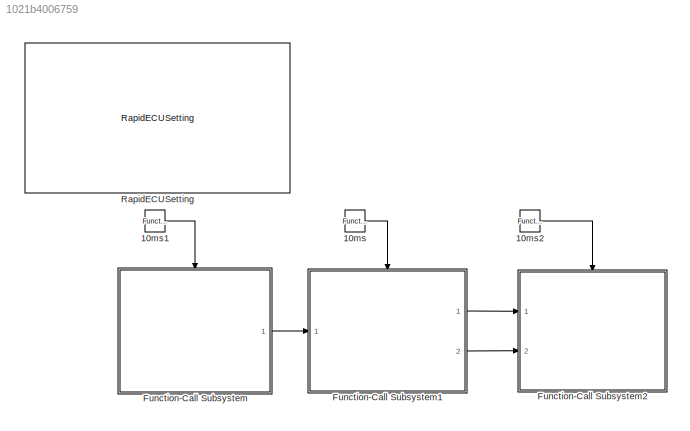
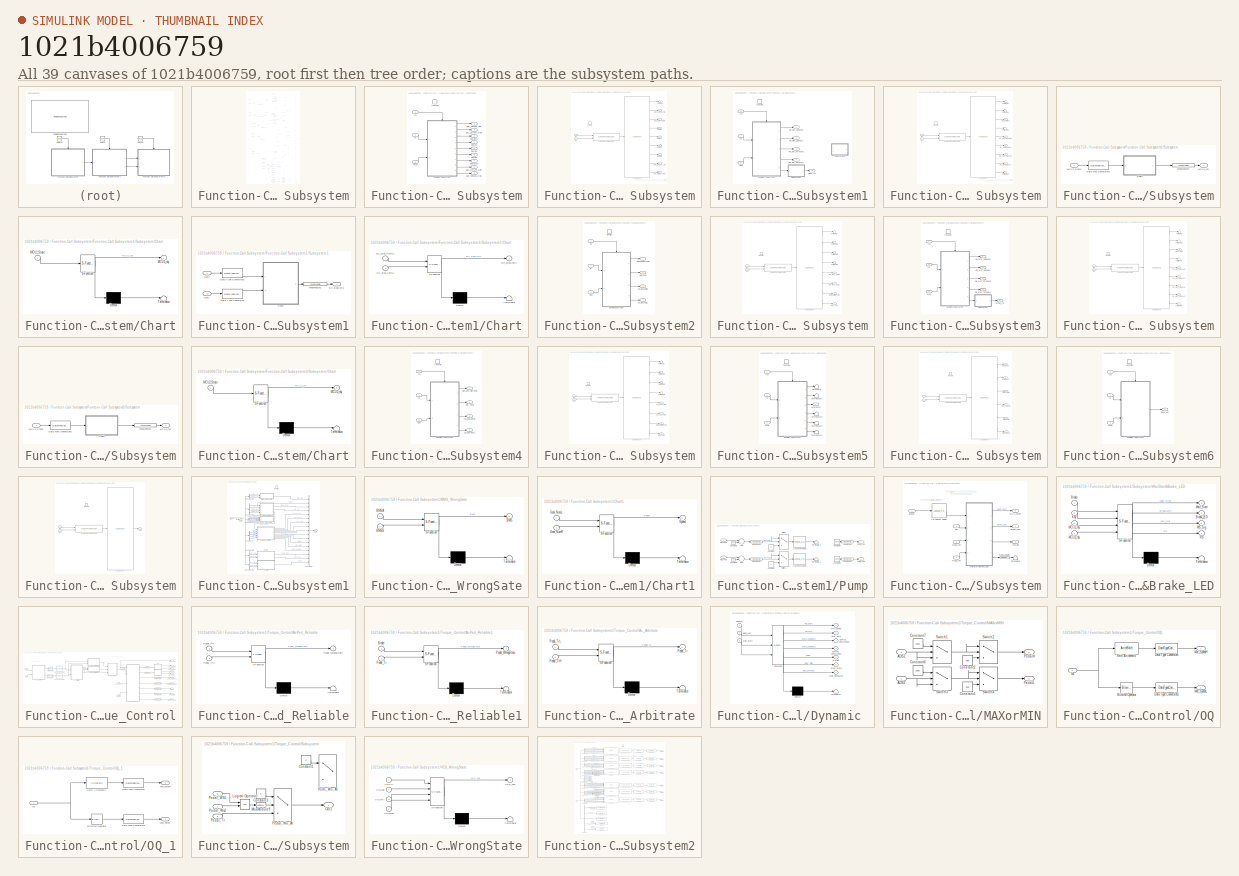
[diagram: thumbnail index - all 39 canvases of the model, root first then tree order]
MODEL slx_1021b4006759
KIND model
CONFIG AbsTol = auto
CONFIG EnableMultiTasking = on
CONFIG FixedStep = 0.0005
CONFIG MaxStep = auto
CONFIG MinStep = auto
CONFIG RelTol = 1e-3
CONFIG SampleTimeConstraint = Unconstrained
CONFIG Solver = FixedStepDiscrete
CONFIG SolverName = FixedStepDiscrete
CONFIG StartTime = 0.0
CONFIG StopTime = 10
BLOCK [Reference] 10ms  REF=simulink/Ports &
Subsystems/Function-Call
Generator
  Ports = [0, 1]
  SourceBlock = simulink/Ports &\nSubsystems/Function-Call\nGenerator
  SourceProductBaseCode = SL
  SourceProductName = Simulink
  SourceType = Function-Call Generator
BLOCK [Reference] 10ms1  REF=simulink/Ports &
Subsystems/Function-Call
Generator
  Ports = [0, 1]
  SourceBlock = simulink/Ports &\nSubsystems/Function-Call\nGenerator
  SourceProductBaseCode = SL
  SourceProductName = Simulink
  SourceType = Function-Call Generator
BLOCK [Reference] 10ms2  REF=simulink/Ports &
Subsystems/Function-Call
Generator
  Ports = [0, 1]
  SourceBlock = simulink/Ports &\nSubsystems/Function-Call\nGenerator
  SourceProductBaseCode = SL
  SourceProductName = Simulink
  SourceType = Function-Call Generator
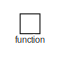
[diagram: Function-Call Subsystem - part 1/7, top center region]
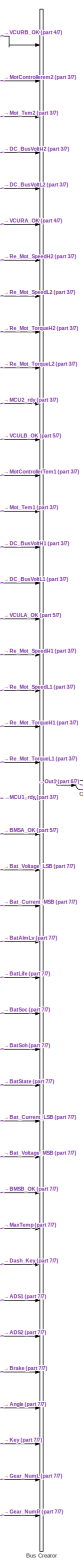
[diagram: Function-Call Subsystem - part 2/7, right side, full height]
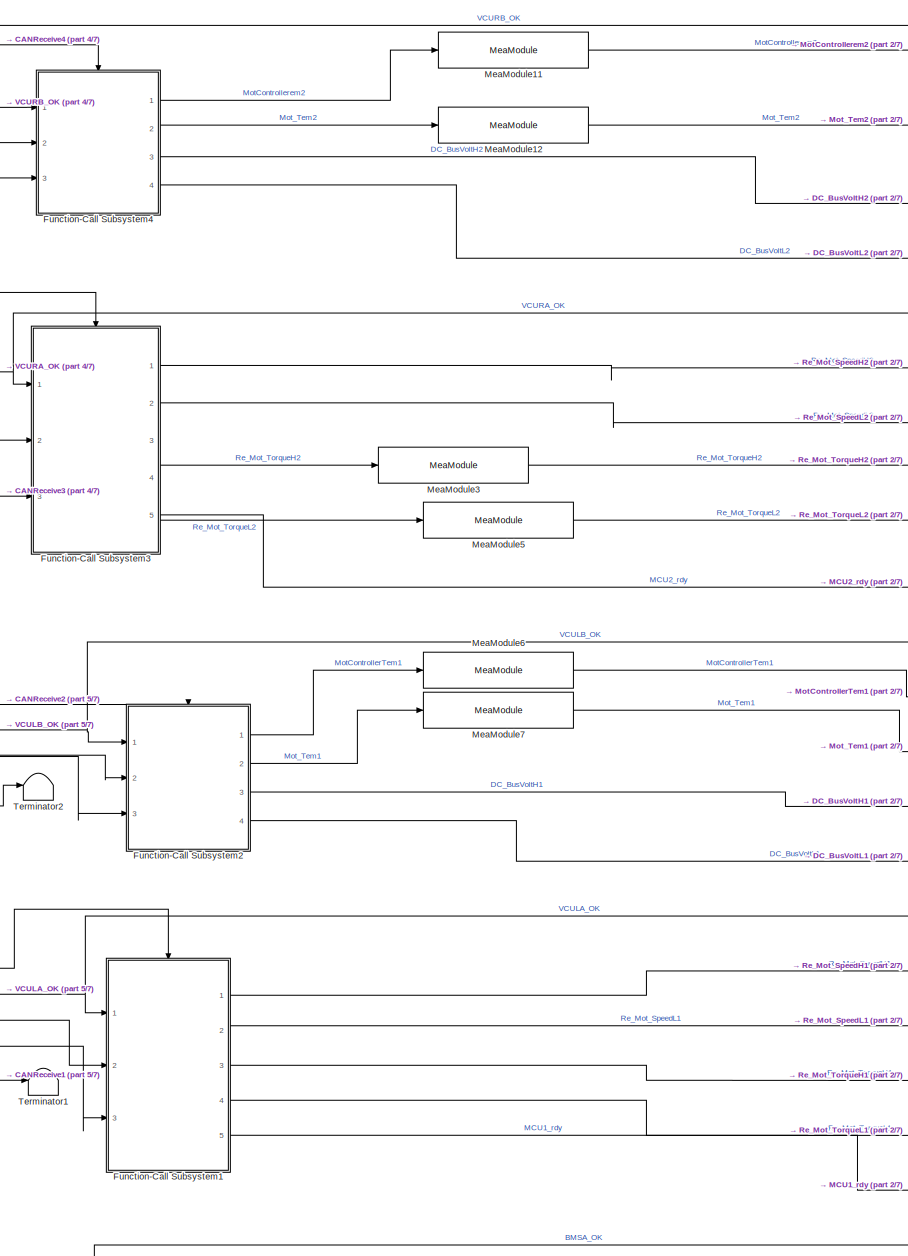
[diagram: Function-Call Subsystem - part 3/7, top center region]
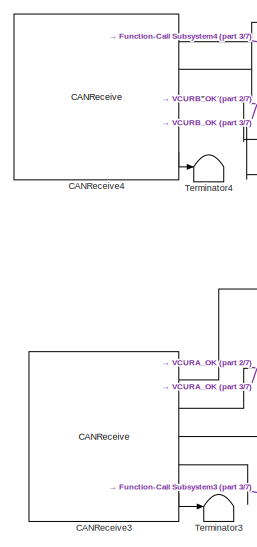
[diagram: Function-Call Subsystem - part 4/7, top left region]
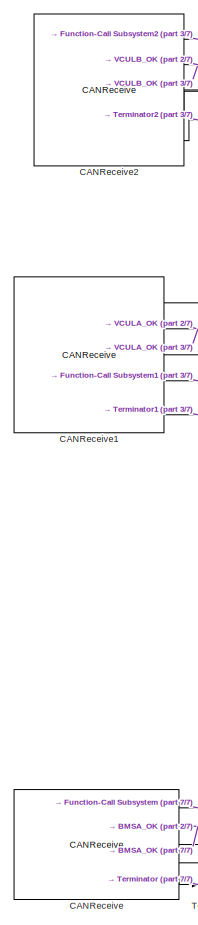
[diagram: Function-Call Subsystem - part 5/7, middle left region]
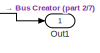
[diagram: Function-Call Subsystem - part 6/7, middle right region]
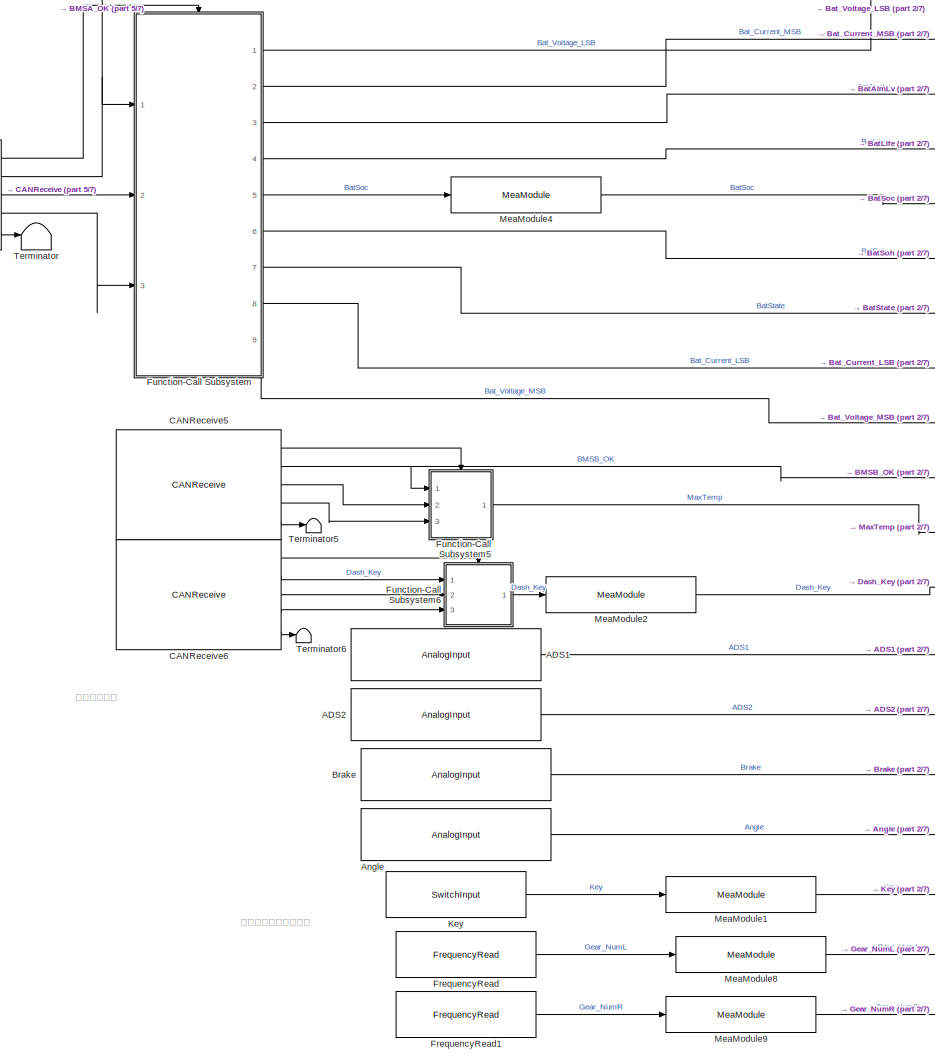
[diagram: Function-Call Subsystem - part 7/7, bottom center region]
BLOCK [SubSystem] Function-Call Subsystem
  Ports = [0, 1, 0, 1]
  RequestExecContextInheritance = off
  TreatAsAtomicUnit = on
BLOCK [Reference] Function-Call Subsystem/ADS1  REF=ec5744lib/RapidECU_U3/01BasicInput/AnalogInput
  Ports = [0, 1]
  SourceBlock = ec5744lib/RapidECU_U3/01BasicInput/AnalogInput
  SourceProductName = ECUCoder for MPC5744
  SourceType = RapidECU Analog Input
BLOCK [Reference] Function-Call Subsystem/ADS2  REF=ec5744lib/RapidECU_U3/01BasicInput/AnalogInput
  Ports = [0, 1]
  SourceBlock = ec5744lib/RapidECU_U3/01BasicInput/AnalogInput
  SourceProductName = ECUCoder for MPC5744
  SourceType = RapidECU Analog Input
BLOCK [Reference] Function-Call Subsystem/Angle  REF=ec5744lib/RapidECU_U3/01BasicInput/AnalogInput
  Ports = [0, 1]
  SourceBlock = ec5744lib/RapidECU_U3/01BasicInput/AnalogInput
  SourceProductName = ECUCoder for MPC5744
  SourceType = RapidECU Analog Input
BLOCK [Reference] Function-Call Subsystem/Brake  REF=ec5744lib/RapidECU_U3/01BasicInput/AnalogInput
  Ports = [0, 1]
  SourceBlock = ec5744lib/RapidECU_U3/01BasicInput/AnalogInput
  SourceProductName = ECUCoder for MPC5744
  SourceType = RapidECU Analog Input
BLOCK [BusCreator] Function-Call Subsystem/Bus Creator
  DisplayOption = bar
  InheritFromInputs = on
  Inputs = 42
  Ports = [42, 1]
BLOCK [Reference] Function-Call Subsystem/CANReceive  REF=ec5744lib/RapidECU_U3/04CANCommunication/CANReceive
  Ports = [0, 5]
  SourceBlock = ec5744lib/RapidECU_U3/04CANCommunication/CANReceive
  SourceProductName = ECUCoder for MPC5744
  SourceType = MPC5744 CAN Receive
BLOCK [Reference] Function-Call Subsystem/CANReceive1  REF=ec5744lib/RapidECU_U3/04CANCommunication/CANReceive
  Ports = [0, 5]
  SourceBlock = ec5744lib/RapidECU_U3/04CANCommunication/CANReceive
  SourceProductName = ECUCoder for MPC5744
  SourceType = MPC5744 CAN Receive
BLOCK [Reference] Function-Call Subsystem/CANReceive2  REF=ec5744lib/RapidECU_U3/04CANCommunication/CANReceive
  Ports = [0, 5]
  SourceBlock = ec5744lib/RapidECU_U3/04CANCommunication/CANReceive
  SourceProductName = ECUCoder for MPC5744
  SourceType = MPC5744 CAN Receive
BLOCK [Reference] Function-Call Subsystem/CANReceive3  REF=ec5744lib/RapidECU_U3/04CANCommunication/CANReceive
  Ports = [0, 5]
  SourceBlock = ec5744lib/RapidECU_U3/04CANCommunication/CANReceive
  SourceProductName = ECUCoder for MPC5744
  SourceType = MPC5744 CAN Receive
BLOCK [Reference] Function-Call Subsystem/CANReceive4  REF=ec5744lib/RapidECU_U3/04CANCommunication/CANReceive
  Ports = [0, 5]
  SourceBlock = ec5744lib/RapidECU_U3/04CANCommunication/CANReceive
  SourceProductName = ECUCoder for MPC5744
  SourceType = MPC5744 CAN Receive
BLOCK [Reference] Function-Call Subsystem/CANReceive5  REF=ec5744lib/RapidECU_U3/04CANCommunication/CANReceive
  Ports = [0, 5]
  SourceBlock = ec5744lib/RapidECU_U3/04CANCommunication/CANReceive
  SourceProductName = ECUCoder for MPC5744
  SourceType = MPC5744 CAN Receive
BLOCK [Reference] Function-Call Subsystem/CANReceive6  REF=ec5744lib/RapidECU_U3/04CANCommunication/CANReceive
  Ports = [0, 5]
  SourceBlock = ec5744lib/RapidECU_U3/04CANCommunication/CANReceive
  SourceProductName = ECUCoder for MPC5744
  SourceType = MPC5744 CAN Receive
BLOCK [Reference] Function-Call Subsystem/FrequencyRead  REF=ec5744lib/RapidECU_U3/01BasicInput/FrequencyRead
  Ports = [0, 1]
  SourceBlock = ec5744lib/RapidECU_U3/01BasicInput/FrequencyRead
  SourceProductName = ECUCoder for MPC5744
  SourceType = RapidECU Frequency Read
BLOCK [Reference] Function-Call Subsystem/FrequencyRead1  REF=ec5744lib/RapidECU_U3/01BasicInput/FrequencyRead
  Ports = [0, 1]
  SourceBlock = ec5744lib/RapidECU_U3/01BasicInput/FrequencyRead
  SourceProductName = ECUCoder for MPC5744
  SourceType = RapidECU Frequency Read
BLOCK [SubSystem] Function-Call Subsystem/Function-Call Subsystem
  Ports = [3, 9, 0, 1]
  RequestExecContextInheritance = off
  TreatAsAtomicUnit = on
BLOCK [Outport] Function-Call Subsystem/Function-Call Subsystem/BatAlmLv
  IconDisplay = Port number
  Port = 3
BLOCK [Outport] Function-Call Subsystem/Function-Call Subsystem/BatLife
  IconDisplay = Port number
  Port = 4
BLOCK [Outport] Function-Call Subsystem/Function-Call Subsystem/BatSoc
  IconDisplay = Port number
  Port = 5
BLOCK [Outport] Function-Call Subsystem/Function-Call Subsystem/BatSoh
  IconDisplay = Port number
  Port = 6
BLOCK [Outport] Function-Call Subsystem/Function-Call Subsystem/BatState
  IconDisplay = Port number
  Port = 7
BLOCK [Outport] Function-Call Subsystem/Function-Call Subsystem/Bat_Current_LSB
  IconDisplay = Port number
  Port = 8
BLOCK [Outport] Function-Call Subsystem/Function-Call Subsystem/Bat_Current_MSB
  IconDisplay = Port number
  Port = 2
BLOCK [Outport] Function-Call Subsystem/Function-Call Subsystem/Bat_Voltage_LSB
  IconDisplay = Port number
BLOCK [Outport] Function-Call Subsystem/Function-Call Subsystem/Bat_Voltage_MSB
  IconDisplay = Port number
  Port = 9
BLOCK [SubSystem] Function-Call Subsystem/Function-Call Subsystem/Enabled Subsystem
  Ports = [2, 9, 1]
  RequestExecContextInheritance = off
  TreatAsAtomicUnit = on
BLOCK [Outport] Function-Call Subsystem/Function-Call Subsystem/Enabled Subsystem/BatAlmLv 
  IconDisplay = Port number
  Port = 3
BLOCK [Outport] Function-Call Subsystem/Function-Call Subsystem/Enabled Subsystem/BatLife
  IconDisplay = Port number
  Port = 4
BLOCK [Outport] Function-Call Subsystem/Function-Call Subsystem/Enabled Subsystem/BatSoc
  IconDisplay = Port number
  Port = 5
BLOCK [Outport] Function-Call Subsystem/Function-Call Subsystem/Enabled Subsystem/BatSoh
  IconDisplay = Port number
  Port = 6
BLOCK [Outport] Function-Call Subsystem/Function-Call Subsystem/Enabled Subsystem/BatState
  IconDisplay = Port number
  Port = 7
BLOCK [Outport] Function-Call Subsystem/Function-Call Subsystem/Enabled Subsystem/Bat_Current_LSB
  IconDisplay = Port number
  Port = 8
BLOCK [Outport] Function-Call Subsystem/Function-Call Subsystem/Enabled Subsystem/Bat_Current_MSB
  IconDisplay = Port number
  Port = 2
BLOCK [Outport] Function-Call Subsystem/Function-Call Subsystem/Enabled Subsystem/Bat_Voltage_LSB 
  IconDisplay = Port number
BLOCK [Outport] Function-Call Subsystem/Function-Call Subsystem/Enabled Subsystem/Bat_Voltage_MSB 
  IconDisplay = Port number
  Port = 9
BLOCK [Reference] Function-Call Subsystem/Function-Call Subsystem/Enabled Subsystem/CAN Unpack  REF=canmsglib/CAN Unpack
  Ports = [1, 9]
  SourceBlock = canmsglib/CAN Unpack
  SourceProductBaseCode = XP
  SourceProductName = Simulink Real-Time
  SourceType = CAN Unpack
BLOCK [Reference] Function-Call Subsystem/Function-Call Subsystem/Enabled Subsystem/CANUnPackMessage  REF=ec5744lib/RapidECU_U3/04CANCommunication/CANUnPackMessage
  Ports = [2, 1]
  SourceBlock = ec5744lib/RapidECU_U3/04CANCommunication/CANUnPackMessage
  SourceProductName = ECUCoder for MPC5744
  SourceType = CAN Unpack Message Receive
BLOCK [EnablePort] Function-Call Subsystem/Function-Call Subsystem/Enabled Subsystem/Enable
  Ports = []
BLOCK [Inport] Function-Call Subsystem/Function-Call Subsystem/Enabled Subsystem/In1
  IconDisplay = Port number
BLOCK [Inport] Function-Call Subsystem/Function-Call Subsystem/Enabled Subsystem/In2
  IconDisplay = Port number
  Port = 2
BLOCK [Inport] Function-Call Subsystem/Function-Call Subsystem/ID
  IconDisplay = Port number
  Port = 2
BLOCK [Inport] Function-Call Subsystem/Function-Call Subsystem/In1
  IconDisplay = Port number
BLOCK [Inport] Function-Call Subsystem/Function-Call Subsystem/Msg
  IconDisplay = Port number
  Port = 3
BLOCK [TriggerPort] Function-Call Subsystem/Function-Call Subsystem/function
  Ports = []
  StatesWhenEnabling = held
  TriggerType = function-call
  VariantControl = Variant
BLOCK [SubSystem] Function-Call Subsystem/Function-Call Subsystem1
  Ports = [3, 5, 0, 1]
  RequestExecContextInheritance = off
  TreatAsAtomicUnit = on
BLOCK [SubSystem] Function-Call Subsystem/Function-Call Subsystem1/Enabled Subsystem
  Ports = [2, 5, 1]
  RequestExecContextInheritance = off
  TreatAsAtomicUnit = on
BLOCK [Reference] Function-Call Subsystem/Function-Call Subsystem1/Enabled Subsystem/CAN Unpack  REF=canmsglib/CAN Unpack
  Ports = [1, 9]
  SourceBlock = canmsglib/CAN Unpack
  SourceProductBaseCode = XP
  SourceProductName = Simulink Real-Time
  SourceType = CAN Unpack
BLOCK [Reference] Function-Call Subsystem/Function-Call Subsystem1/Enabled Subsystem/CANUnPackMessage  REF=ec5744lib/RapidECU_U3/04CANCommunication/CANUnPackMessage
  Ports = [2, 1]
  SourceBlock = ec5744lib/RapidECU_U3/04CANCommunication/CANUnPackMessage
  SourceProductName = ECUCoder for MPC5744
  SourceType = CAN Unpack Message Receive
BLOCK [EnablePort] Function-Call Subsystem/Function-Call Subsystem1/Enabled Subsystem/Enable
  Ports = []
BLOCK [Inport] Function-Call Subsystem/Function-Call Subsystem1/Enabled Subsystem/In1
  IconDisplay = Port number
BLOCK [Inport] Function-Call Subsystem/Function-Call Subsystem1/Enabled Subsystem/In2
  IconDisplay = Port number
  Port = 2
BLOCK [Outport] Function-Call Subsystem/Function-Call Subsystem1/Enabled Subsystem/MCU1State1
  IconDisplay = Port number
  Port = 5
BLOCK [Outport] Function-Call Subsystem/Function-Call Subsystem1/Enabled Subsystem/Pe_Mot_SpeedH1
  IconDisplay = Port number
BLOCK [Outport] Function-Call Subsystem/Function-Call Subsystem1/Enabled Subsystem/Re_MotSpeedL1
  IconDisplay = Port number
  Port = 2
BLOCK [Outport] Function-Call Subsystem/Function-Call Subsystem1/Enabled Subsystem/Re_MotTorqueL1
  IconDisplay = Port number
  Port = 4
BLOCK [Outport] Function-Call Subsystem/Function-Call Subsystem1/Enabled Subsystem/Re_Mot_TorqueH1
  IconDisplay = Port number
  Port = 3
BLOCK [Terminator] Function-Call Subsystem/Function-Call Subsystem1/Enabled Subsystem/Terminator
BLOCK [Terminator] Function-Call Subsystem/Function-Call Subsystem1/Enabled Subsystem/Terminator1
BLOCK [Terminator] Function-Call Subsystem/Function-Call Subsystem1/Enabled Subsystem/Terminator3
BLOCK [Terminator] Function-Call Subsystem/Function-Call Subsystem1/Enabled Subsystem/Terminator4
BLOCK [Inport] Function-Call Subsystem/Function-Call Subsystem1/ID
  IconDisplay = Port number
  Port = 2
BLOCK [Inport] Function-Call Subsystem/Function-Call Subsystem1/In1
  IconDisplay = Port number
BLOCK [Outport] Function-Call Subsystem/Function-Call Subsystem1/MCU1_rdy
  IconDisplay = Port number
  Port = 5
BLOCK [Inport] Function-Call Subsystem/Function-Call Subsystem1/Msg
  IconDisplay = Port number
  Port = 3
BLOCK [Outport] Function-Call Subsystem/Function-Call Subsystem1/Re_Mot_SpeedH1
  IconDisplay = Port number
BLOCK [Outport] Function-Call Subsystem/Function-Call Subsystem1/Re_Mot_SpeedL1
  IconDisplay = Port number
  Port = 2
BLOCK [Outport] Function-Call Subsystem/Function-Call Subsystem1/Re_Mot_TorqueH1
  IconDisplay = Port number
  Port = 3
BLOCK [Outport] Function-Call Subsystem/Function-Call Subsystem1/Re_Mot_TorqueL1
  IconDisplay = Port number
  Port = 4
BLOCK [SubSystem] Function-Call Subsystem/Function-Call Subsystem1/Subsystem
  Ports = [1, 1]
  RequestExecContextInheritance = off
BLOCK [SubSystem] Function-Call Subsystem/Function-Call Subsystem1/Subsystem/Chart
  ErrorFcn = Stateflow.Translate.translate
  PermitHierarchicalResolution = ExplicitOnly
  Ports = [1, 1]
  RequestExecContextInheritance = off
  SFBlockType = Chart
  TreatAsAtomicUnit = on
BLOCK [Demux] Function-Call Subsystem/Function-Call Subsystem1/Subsystem/Chart/ Demux 
  Outputs = 1
  Ports = [1, 1]
BLOCK [S-Function] Function-Call Subsystem/Function-Call Subsystem1/Subsystem/Chart/ SFunction 
  EnableBusSupport = on
  FunctionName = sf_sfun
  PortCounts = [1 2]
  Ports = [1, 2]
  SFcnIsStateOwnerBlock = off
  SFunctionDeploymentMode = off
  Tag = Stateflow S-Function Demo1 9
BLOCK [Terminator] Function-Call Subsystem/Function-Call Subsystem1/Subsystem/Chart/ Terminator 
BLOCK [Inport] Function-Call Subsystem/Function-Call Subsystem1/Subsystem/Chart/MCU1_State
  IconDisplay = Port number
BLOCK [Outport] Function-Call Subsystem/Function-Call Subsystem1/Subsystem/Chart/MCU1_rdy
  IconDisplay = Port number
BLOCK [DataTypeConversion] Function-Call Subsystem/Function-Call Subsystem1/Subsystem/Data Type Conversion1
  OutDataTypeStr = uint8
  RndMeth = Floor
  SaturateOnIntegerOverflow = off
BLOCK [Inport] Function-Call Subsystem/Function-Call Subsystem1/Subsystem/MCU1_State
  IconDisplay = Port number
BLOCK [Outport] Function-Call Subsystem/Function-Call Subsystem1/Subsystem/MCU1_rdy
  IconDisplay = Port number
BLOCK [Reference] Function-Call Subsystem/Function-Call Subsystem1/Subsystem/MeaModule1  REF=ec5744lib/RapidECU_U3/07Calibration/MeaModule
  Ports = [1, 1]
  SourceBlock = ec5744lib/RapidECU_U3/07Calibration/MeaModule
  SourceProductName = ECUCoder for MPC5744
  SourceType = Measurement Module
BLOCK [SubSystem] Function-Call Subsystem/Function-Call Subsystem1/Subsystem1
  Commented = on
  Ports = [2, 1]
  RequestExecContextInheritance = off
BLOCK [SubSystem] Function-Call Subsystem/Function-Call Subsystem1/Subsystem1/Chart
  ErrorFcn = Stateflow.Translate.translate
  PermitHierarchicalResolution = ExplicitOnly
  Ports = [2, 1]
  RequestExecContextInheritance = off
  SFBlockType = Chart
  TreatAsAtomicUnit = on
BLOCK [Demux] Function-Call Subsystem/Function-Call Subsystem1/Subsystem1/Chart/ Demux 
  Outputs = 1
  Ports = [1, 1]
BLOCK [S-Function] Function-Call Subsystem/Function-Call Subsystem1/Subsystem1/Chart/ SFunction 
  EnableBusSupport = on
  FunctionName = sf_sfun
  PortCounts = [2 2]
  Ports = [2, 2]
  SFcnIsStateOwnerBlock = off
  SFunctionDeploymentMode = off
  Tag = Stateflow S-Function Demo1 13
BLOCK [Terminator] Function-Call Subsystem/Function-Call Subsystem1/Subsystem1/Chart/ Terminator 
BLOCK [Outport] Function-Call Subsystem/Function-Call Subsystem1/Subsystem1/Chart/DC_BusVolt1
  IconDisplay = Port number
BLOCK [Inport] Function-Call Subsystem/Function-Call Subsystem1/Subsystem1/Chart/DC_Bus_VoltH1
  IconDisplay = Port number
BLOCK [Inport] Function-Call Subsystem/Function-Call Subsystem1/Subsystem1/Chart/DC_Bus_VoltL1
  IconDisplay = Port number
  Port = 2
BLOCK [Outport] Function-Call Subsystem/Function-Call Subsystem1/Subsystem1/DC_BusVolt1
  IconDisplay = Port number
BLOCK [Inport] Function-Call Subsystem/Function-Call Subsystem1/Subsystem1/DatH
  IconDisplay = Port number
BLOCK [Inport] Function-Call Subsystem/Function-Call Subsystem1/Subsystem1/DatL
  IconDisplay = Port number
  Port = 2
BLOCK [DataTypeConversion] Function-Call Subsystem/Function-Call Subsystem1/Subsystem1/Data Type Conversion
  OutDataTypeStr = uint16
  RndMeth = Floor
  SaturateOnIntegerOverflow = off
BLOCK [DataTypeConversion] Function-Call Subsystem/Function-Call Subsystem1/Subsystem1/Data Type Conversion1
  OutDataTypeStr = uint16
  RndMeth = Floor
  SaturateOnIntegerOverflow = off
BLOCK [Reference] Function-Call Subsystem/Function-Call Subsystem1/Subsystem1/MeaModule1  REF=ec5744lib/RapidECU_U3/07Calibration/MeaModule
  Ports = [1, 1]
  SourceBlock = ec5744lib/RapidECU_U3/07Calibration/MeaModule
  SourceProductName = ECUCoder for MPC5744
  SourceType = Measurement Module
BLOCK [TriggerPort] Function-Call Subsystem/Function-Call Subsystem1/function
  Ports = []
  StatesWhenEnabling = held
  TriggerType = function-call
  VariantControl = Variant
BLOCK [SubSystem] Function-Call Subsystem/Function-Call Subsystem2
  Ports = [3, 4, 0, 1]
  RequestExecContextInheritance = off
  TreatAsAtomicUnit = on
BLOCK [Outport] Function-Call Subsystem/Function-Call Subsystem2/DC_BusVoltH1
  IconDisplay = Port number
  Port = 3
BLOCK [Outport] Function-Call Subsystem/Function-Call Subsystem2/DC_BusVoltL1
  IconDisplay = Port number
  Port = 4
BLOCK [SubSystem] Function-Call Subsystem/Function-Call Subsystem2/Enabled Subsystem
  Ports = [2, 4, 1]
  RequestExecContextInheritance = off
  TreatAsAtomicUnit = on
BLOCK [Reference] Function-Call Subsystem/Function-Call Subsystem2/Enabled Subsystem/CAN Unpack  REF=canmsglib/CAN Unpack
  Ports = [1, 8]
  SourceBlock = canmsglib/CAN Unpack
  SourceProductBaseCode = XP
  SourceProductName = Simulink Real-Time
  SourceType = CAN Unpack
BLOCK [Reference] Function-Call Subsystem/Function-Call Subsystem2/Enabled Subsystem/CANUnPackMessage  REF=ec5744lib/RapidECU_U3/04CANCommunication/CANUnPackMessage
  Ports = [2, 1]
  SourceBlock = ec5744lib/RapidECU_U3/04CANCommunication/CANUnPackMessage
  SourceProductName = ECUCoder for MPC5744
  SourceType = CAN Unpack Message Receive
BLOCK [Outport] Function-Call Subsystem/Function-Call Subsystem2/Enabled Subsystem/DC_Bus_VoltH1
  IconDisplay = Port number
  Port = 3
BLOCK [Outport] Function-Call Subsystem/Function-Call Subsystem2/Enabled Subsystem/DC_Bus_VoltL1
  IconDisplay = Port number
  Port = 4
BLOCK [EnablePort] Function-Call Subsystem/Function-Call Subsystem2/Enabled Subsystem/Enable
  Ports = []
BLOCK [Inport] Function-Call Subsystem/Function-Call Subsystem2/Enabled Subsystem/In1
  IconDisplay = Port number
BLOCK [Inport] Function-Call Subsystem/Function-Call Subsystem2/Enabled Subsystem/In2
  IconDisplay = Port number
  Port = 2
BLOCK [Outport] Function-Call Subsystem/Function-Call Subsystem2/Enabled Subsystem/MotControllerTem1
  IconDisplay = Port number
BLOCK [Outport] Function-Call Subsystem/Function-Call Subsystem2/Enabled Subsystem/Mot_Tem1
  IconDisplay = Port number
  Port = 2
BLOCK [Terminator] Function-Call Subsystem/Function-Call Subsystem2/Enabled Subsystem/Terminator
BLOCK [Terminator] Function-Call Subsystem/Function-Call Subsystem2/Enabled Subsystem/Terminator1
BLOCK [Terminator] Function-Call Subsystem/Function-Call Subsystem2/Enabled Subsystem/Terminator2
BLOCK [Terminator] Function-Call Subsystem/Function-Call Subsystem2/Enabled Subsystem/Terminator3
BLOCK [Inport] Function-Call Subsystem/Function-Call Subsystem2/ID
  IconDisplay = Port number
  Port = 2
BLOCK [Inport] Function-Call Subsystem/Function-Call Subsystem2/In1
  IconDisplay = Port number
BLOCK [Outport] Function-Call Subsystem/Function-Call Subsystem2/MotControllerTem1
  IconDisplay = Port number
BLOCK [Outport] Function-Call Subsystem/Function-Call Subsystem2/Mot_Tem1
  IconDisplay = Port number
  Port = 2
BLOCK [Inport] Function-Call Subsystem/Function-Call Subsystem2/Msg
  IconDisplay = Port number
  Port = 3
BLOCK [TriggerPort] Function-Call Subsystem/Function-Call Subsystem2/function
  Ports = []
  StatesWhenEnabling = held
  TriggerType = function-call
  VariantControl = Variant
BLOCK [SubSystem] Function-Call Subsystem/Function-Call Subsystem3
  Ports = [3, 5, 0, 1]
  RequestExecContextInheritance = off
  TreatAsAtomicUnit = on
BLOCK [SubSystem] Function-Call Subsystem/Function-Call Subsystem3/Enabled Subsystem
  Ports = [2, 5, 1]
  RequestExecContextInheritance = off
  TreatAsAtomicUnit = on
BLOCK [Reference] Function-Call Subsystem/Function-Call Subsystem3/Enabled Subsystem/CAN Unpack  REF=canmsglib/CAN Unpack
  Ports = [1, 9]
  SourceBlock = canmsglib/CAN Unpack
  SourceProductBaseCode = XP
  SourceProductName = Simulink Real-Time
  SourceType = CAN Unpack
BLOCK [Reference] Function-Call Subsystem/Function-Call Subsystem3/Enabled Subsystem/CANUnPackMessage  REF=ec5744lib/RapidECU_U3/04CANCommunication/CANUnPackMessage
  Ports = [2, 1]
  SourceBlock = ec5744lib/RapidECU_U3/04CANCommunication/CANUnPackMessage
  SourceProductName = ECUCoder for MPC5744
  SourceType = CAN Unpack Message Receive
BLOCK [EnablePort] Function-Call Subsystem/Function-Call Subsystem3/Enabled Subsystem/Enable
  Ports = []
BLOCK [Inport] Function-Call Subsystem/Function-Call Subsystem3/Enabled Subsystem/In1
  IconDisplay = Port number
BLOCK [Inport] Function-Call Subsystem/Function-Call Subsystem3/Enabled Subsystem/In2
  IconDisplay = Port number
  Port = 2
BLOCK [Outport] Function-Call Subsystem/Function-Call Subsystem3/Enabled Subsystem/MCU2State1
  IconDisplay = Port number
  Port = 5
BLOCK [Outport] Function-Call Subsystem/Function-Call Subsystem3/Enabled Subsystem/Re_Mot_SpeedH2
  IconDisplay = Port number
BLOCK [Outport] Function-Call Subsystem/Function-Call Subsystem3/Enabled Subsystem/Re_Mot_SpeedL2
  IconDisplay = Port number
  Port = 2
BLOCK [Outport] Function-Call Subsystem/Function-Call Subsystem3/Enabled Subsystem/Re_Mot_TorqueH2
  IconDisplay = Port number
  Port = 3
BLOCK [Outport] Function-Call Subsystem/Function-Call Subsystem3/Enabled Subsystem/Re_Mot_TorqueL2
  IconDisplay = Port number
  Port = 4
BLOCK [Terminator] Function-Call Subsystem/Function-Call Subsystem3/Enabled Subsystem/Terminator
BLOCK [Terminator] Function-Call Subsystem/Function-Call Subsystem3/Enabled Subsystem/Terminator1
BLOCK [Terminator] Function-Call Subsystem/Function-Call Subsystem3/Enabled Subsystem/Terminator3
BLOCK [Terminator] Function-Call Subsystem/Function-Call Subsystem3/Enabled Subsystem/Terminator4
BLOCK [Inport] Function-Call Subsystem/Function-Call Subsystem3/ID
  IconDisplay = Port number
  Port = 2
BLOCK [Inport] Function-Call Subsystem/Function-Call Subsystem3/In1
  IconDisplay = Port number
BLOCK [Outport] Function-Call Subsystem/Function-Call Subsystem3/MCU2_rdy
  IconDisplay = Port number
  Port = 5
BLOCK [Inport] Function-Call Subsystem/Function-Call Subsystem3/Msg
  IconDisplay = Port number
  Port = 3
BLOCK [Outport] Function-Call Subsystem/Function-Call Subsystem3/Re_Mot_SpeedH2
  IconDisplay = Port number
BLOCK [Outport] Function-Call Subsystem/Function-Call Subsystem3/Re_Mot_SpeedL2
  IconDisplay = Port number
  Port = 2
BLOCK [Outport] Function-Call Subsystem/Function-Call Subsystem3/Re_Mot_TorqueH2
  IconDisplay = Port number
  Port = 3
BLOCK [Outport] Function-Call Subsystem/Function-Call Subsystem3/Re_Mot_TorqueL2
  IconDisplay = Port number
  Port = 4
BLOCK [SubSystem] Function-Call Subsystem/Function-Call Subsystem3/Subsystem
  Ports = [1, 1]
  RequestExecContextInheritance = off
BLOCK [SubSystem] Function-Call Subsystem/Function-Call Subsystem3/Subsystem/Chart
  ErrorFcn = Stateflow.Translate.translate
  PermitHierarchicalResolution = ExplicitOnly
  Ports = [1, 1]
  RequestExecContextInheritance = off
  SFBlockType = Chart
  TreatAsAtomicUnit = on
BLOCK [Demux] Function-Call Subsystem/Function-Call Subsystem3/Subsystem/Chart/ Demux 
  Outputs = 1
  Ports = [1, 1]
BLOCK [S-Function] Function-Call Subsystem/Function-Call Subsystem3/Subsystem/Chart/ SFunction 
  EnableBusSupport = on
  FunctionName = sf_sfun
  PortCounts = [1 2]
  Ports = [1, 2]
  SFcnIsStateOwnerBlock = off
  SFunctionDeploymentMode = off
  Tag = Stateflow S-Function Demo1 12
BLOCK [Terminator] Function-Call Subsystem/Function-Call Subsystem3/Subsystem/Chart/ Terminator 
BLOCK [Inport] Function-Call Subsystem/Function-Call Subsystem3/Subsystem/Chart/MCU2_State
  IconDisplay = Port number
BLOCK [Outport] Function-Call Subsystem/Function-Call Subsystem3/Subsystem/Chart/MCU2_rdy
  IconDisplay = Port number
BLOCK [DataTypeConversion] Function-Call Subsystem/Function-Call Subsystem3/Subsystem/Data Type Conversion1
  OutDataTypeStr = uint8
  RndMeth = Floor
  SaturateOnIntegerOverflow = off
BLOCK [Inport] Function-Call Subsystem/Function-Call Subsystem3/Subsystem/MCU2_State
  IconDisplay = Port number
BLOCK [Outport] Function-Call Subsystem/Function-Call Subsystem3/Subsystem/MCU2_rdy
  IconDisplay = Port number
BLOCK [Reference] Function-Call Subsystem/Function-Call Subsystem3/Subsystem/MeaModule1  REF=ec5744lib/RapidECU_U3/07Calibration/MeaModule
  Ports = [1, 1]
  SourceBlock = ec5744lib/RapidECU_U3/07Calibration/MeaModule
  SourceProductName = ECUCoder for MPC5744
  SourceType = Measurement Module
BLOCK [TriggerPort] Function-Call Subsystem/Function-Call Subsystem3/function
  Ports = []
  StatesWhenEnabling = held
  TriggerType = function-call
  VariantControl = Variant
BLOCK [SubSystem] Function-Call Subsystem/Function-Call Subsystem4
  Ports = [3, 4, 0, 1]
  RequestExecContextInheritance = off
  TreatAsAtomicUnit = on
BLOCK [Outport] Function-Call Subsystem/Function-Call Subsystem4/DC_BusVoltH2
  IconDisplay = Port number
  Port = 3
BLOCK [Outport] Function-Call Subsystem/Function-Call Subsystem4/DC_BusVoltL2
  IconDisplay = Port number
  Port = 4
BLOCK [SubSystem] Function-Call Subsystem/Function-Call Subsystem4/Enabled Subsystem
  Ports = [2, 4, 1]
  RequestExecContextInheritance = off
  TreatAsAtomicUnit = on
BLOCK [Reference] Function-Call Subsystem/Function-Call Subsystem4/Enabled Subsystem/CAN Unpack  REF=canmsglib/CAN Unpack
  Ports = [1, 8]
  SourceBlock = canmsglib/CAN Unpack
  SourceProductBaseCode = XP
  SourceProductName = Simulink Real-Time
  SourceType = CAN Unpack
BLOCK [Reference] Function-Call Subsystem/Function-Call Subsystem4/Enabled Subsystem/CANUnPackMessage  REF=ec5744lib/RapidECU_U3/04CANCommunication/CANUnPackMessage
  Ports = [2, 1]
  SourceBlock = ec5744lib/RapidECU_U3/04CANCommunication/CANUnPackMessage
  SourceProductName = ECUCoder for MPC5744
  SourceType = CAN Unpack Message Receive
BLOCK [Outport] Function-Call Subsystem/Function-Call Subsystem4/Enabled Subsystem/DC_BusVoltH2
  IconDisplay = Port number
  Port = 3
BLOCK [Outport] Function-Call Subsystem/Function-Call Subsystem4/Enabled Subsystem/DC_BusVoltL2
  IconDisplay = Port number
  Port = 4
BLOCK [EnablePort] Function-Call Subsystem/Function-Call Subsystem4/Enabled Subsystem/Enable
  Ports = []
BLOCK [Inport] Function-Call Subsystem/Function-Call Subsystem4/Enabled Subsystem/In1
  IconDisplay = Port number
BLOCK [Inport] Function-Call Subsystem/Function-Call Subsystem4/Enabled Subsystem/In2
  IconDisplay = Port number
  Port = 2
BLOCK [Outport] Function-Call Subsystem/Function-Call Subsystem4/Enabled Subsystem/MotControllerTem2
  IconDisplay = Port number
BLOCK [Outport] Function-Call Subsystem/Function-Call Subsystem4/Enabled Subsystem/Mot_Tem2
  IconDisplay = Port number
  Port = 2
BLOCK [Terminator] Function-Call Subsystem/Function-Call Subsystem4/Enabled Subsystem/Terminator
BLOCK [Terminator] Function-Call Subsystem/Function-Call Subsystem4/Enabled Subsystem/Terminator1
BLOCK [Terminator] Function-Call Subsystem/Function-Call Subsystem4/Enabled Subsystem/Terminator2
BLOCK [Terminator] Function-Call Subsystem/Function-Call Subsystem4/Enabled Subsystem/Terminator3
BLOCK [Inport] Function-Call Subsystem/Function-Call Subsystem4/ID
  IconDisplay = Port number
  Port = 2
BLOCK [Inport] Function-Call Subsystem/Function-Call Subsystem4/In1
  IconDisplay = Port number
BLOCK [Outport] Function-Call Subsystem/Function-Call Subsystem4/MotControllerTem2
  IconDisplay = Port number
BLOCK [Outport] Function-Call Subsystem/Function-Call Subsystem4/Mot_Tem2
  IconDisplay = Port number
  Port = 2
BLOCK [Inport] Function-Call Subsystem/Function-Call Subsystem4/Msg
  IconDisplay = Port number
  Port = 3
BLOCK [TriggerPort] Function-Call Subsystem/Function-Call Subsystem4/function
  Ports = []
  StatesWhenEnabling = held
  TriggerType = function-call
  VariantControl = Variant
BLOCK [SubSystem] Function-Call Subsystem/Function-Call Subsystem5
  Ports = [3, 1, 0, 1]
  RequestExecContextInheritance = off
  TreatAsAtomicUnit = on
BLOCK [SubSystem] Function-Call Subsystem/Function-Call Subsystem5/Enabled Subsystem
  Ports = [2, 6, 1]
  RequestExecContextInheritance = off
  TreatAsAtomicUnit = on
BLOCK [Reference] Function-Call Subsystem/Function-Call Subsystem5/Enabled Subsystem/CAN Unpack  REF=canmsglib/CAN Unpack
  Ports = [1, 6]
  SourceBlock = canmsglib/CAN Unpack
  SourceProductBaseCode = XP
  SourceProductName = Simulink Real-Time
  SourceType = CAN Unpack
BLOCK [Reference] Function-Call Subsystem/Function-Call Subsystem5/Enabled Subsystem/CANUnPackMessage  REF=ec5744lib/RapidECU_U3/04CANCommunication/CANUnPackMessage
  Ports = [2, 1]
  SourceBlock = ec5744lib/RapidECU_U3/04CANCommunication/CANUnPackMessage
  SourceProductName = ECUCoder for MPC5744
  SourceType = CAN Unpack Message Receive
BLOCK [Outport] Function-Call Subsystem/Function-Call Subsystem5/Enabled Subsystem/CoolingCtl 
  IconDisplay = Port number
BLOCK [EnablePort] Function-Call Subsystem/Function-Call Subsystem5/Enabled Subsystem/Enable
  Ports = []
BLOCK [Outport] Function-Call Subsystem/Function-Call Subsystem5/Enabled Subsystem/HeatingCtl
  IconDisplay = Port number
  Port = 2
BLOCK [Inport] Function-Call Subsystem/Function-Call Subsystem5/Enabled Subsystem/In1
  IconDisplay = Port number
BLOCK [Inport] Function-Call Subsystem/Function-Call Subsystem5/Enabled Subsystem/In2
  IconDisplay = Port number
  Port = 2
BLOCK [Outport] Function-Call Subsystem/Function-Call Subsystem5/Enabled Subsystem/MaxTemp
  IconDisplay = Port number
  Port = 3
BLOCK [Outport] Function-Call Subsystem/Function-Call Subsystem5/Enabled Subsystem/MaxTempNo
  IconDisplay = Port number
  Port = 4
BLOCK [Outport] Function-Call Subsystem/Function-Call Subsystem5/Enabled Subsystem/MinTemp
  IconDisplay = Port number
  Port = 5
BLOCK [Outport] Function-Call Subsystem/Function-Call Subsystem5/Enabled Subsystem/MinTempNo
  IconDisplay = Port number
  Port = 6
BLOCK [Inport] Function-Call Subsystem/Function-Call Subsystem5/ID
  IconDisplay = Port number
  Port = 2
BLOCK [Inport] Function-Call Subsystem/Function-Call Subsystem5/In1
  IconDisplay = Port number
BLOCK [Outport] Function-Call Subsystem/Function-Call Subsystem5/MaxTemp
  IconDisplay = Port number
BLOCK [Inport] Function-Call Subsystem/Function-Call Subsystem5/Msg
  IconDisplay = Port number
  Port = 3
BLOCK [Terminator] Function-Call Subsystem/Function-Call Subsystem5/Terminator
BLOCK [Terminator] Function-Call Subsystem/Function-Call Subsystem5/Terminator1
BLOCK [Terminator] Function-Call Subsystem/Function-Call Subsystem5/Terminator2
BLOCK [Terminator] Function-Call Subsystem/Function-Call Subsystem5/Terminator3
BLOCK [Terminator] Function-Call Subsystem/Function-Call Subsystem5/Terminator4
BLOCK [TriggerPort] Function-Call Subsystem/Function-Call Subsystem5/function
  Ports = []
  StatesWhenEnabling = held
  TriggerType = function-call
  VariantControl = Variant
BLOCK [SubSystem] Function-Call Subsystem/Function-Call Subsystem6
  Ports = [3, 1, 0, 1]
  RequestExecContextInheritance = off
  TreatAsAtomicUnit = on
BLOCK [Outport] Function-Call Subsystem/Function-Call Subsystem6/Dash_Key
  IconDisplay = Port number
BLOCK [SubSystem] Function-Call Subsystem/Function-Call Subsystem6/Enabled Subsystem
  Ports = [2, 1, 1]
  RequestExecContextInheritance = off
  TreatAsAtomicUnit = on
BLOCK [Reference] Function-Call Subsystem/Function-Call Subsystem6/Enabled Subsystem/CAN Unpack  REF=canmsglib/CAN Unpack
  Ports = [1, 1]
  SourceBlock = canmsglib/CAN Unpack
  SourceProductBaseCode = XP
  SourceProductName = Simulink Real-Time
  SourceType = CAN Unpack
BLOCK [Reference] Function-Call Subsystem/Function-Call Subsystem6/Enabled Subsystem/CANUnPackMessage  REF=ec5744lib/RapidECU_U3/04CANCommunication/CANUnPackMessage
  Ports = [2, 1]
  SourceBlock = ec5744lib/RapidECU_U3/04CANCommunication/CANUnPackMessage
  SourceProductName = ECUCoder for MPC5744
  SourceType = CAN Unpack Message Receive
BLOCK [EnablePort] Function-Call Subsystem/Function-Call Subsystem6/Enabled Subsystem/Enable
  Ports = []
BLOCK [Inport] Function-Call Subsystem/Function-Call Subsystem6/Enabled Subsystem/In1
  IconDisplay = Port number
BLOCK [Inport] Function-Call Subsystem/Function-Call Subsystem6/Enabled Subsystem/In2
  IconDisplay = Port number
  Port = 2
BLOCK [Outport] Function-Call Subsystem/Function-Call Subsystem6/Enabled Subsystem/Out1
  IconDisplay = Port number
BLOCK [Inport] Function-Call Subsystem/Function-Call Subsystem6/ID
  IconDisplay = Port number
  Port = 2
BLOCK [Inport] Function-Call Subsystem/Function-Call Subsystem6/In1
  IconDisplay = Port number
BLOCK [Inport] Function-Call Subsystem/Function-Call Subsystem6/Msg
  IconDisplay = Port number
  Port = 3
BLOCK [TriggerPort] Function-Call Subsystem/Function-Call Subsystem6/function
  Ports = []
  StatesWhenEnabling = held
  TriggerType = function-call
  VariantControl = Variant
BLOCK [Reference] Function-Call Subsystem/Key  REF=ec5744lib/RapidECU_U3/01BasicInput/SwitchInput
  Ports = [0, 1]
  SourceBlock = ec5744lib/RapidECU_U3/01BasicInput/SwitchInput
  SourceProductName = ECUCoder for MPC5744
  SourceType = RapidECU Switch Input
BLOCK [Reference] Function-Call Subsystem/MeaModule1  REF=ec5744lib/RapidECU_U3/07Calibration/MeaModule
  Ports = [1, 1]
  SourceBlock = ec5744lib/RapidECU_U3/07Calibration/MeaModule
  SourceProductName = ECUCoder for MPC5744
  SourceType = Measurement Module
BLOCK [Reference] Function-Call Subsystem/MeaModule11  REF=ec5744lib/RapidECU_U3/07Calibration/MeaModule
  Ports = [1, 1]
  SourceBlock = ec5744lib/RapidECU_U3/07Calibration/MeaModule
  SourceProductName = ECUCoder for MPC5744
  SourceType = Measurement Module
BLOCK [Reference] Function-Call Subsystem/MeaModule12  REF=ec5744lib/RapidECU_U3/07Calibration/MeaModule
  Ports = [1, 1]
  SourceBlock = ec5744lib/RapidECU_U3/07Calibration/MeaModule
  SourceProductName = ECUCoder for MPC5744
  SourceType = Measurement Module
BLOCK [Reference] Function-Call Subsystem/MeaModule2  REF=ec5744lib/RapidECU_U3/07Calibration/MeaModule
  Ports = [1, 1]
  SourceBlock = ec5744lib/RapidECU_U3/07Calibration/MeaModule
  SourceProductName = ECUCoder for MPC5744
  SourceType = Measurement Module
BLOCK [Reference] Function-Call Subsystem/MeaModule3  REF=ec5744lib/RapidECU_U3/07Calibration/MeaModule
  Ports = [1, 1]
  SourceBlock = ec5744lib/RapidECU_U3/07Calibration/MeaModule
  SourceProductName = ECUCoder for MPC5744
  SourceType = Measurement Module
BLOCK [Reference] Function-Call Subsystem/MeaModule4  REF=ec5744lib/RapidECU_U3/07Calibration/MeaModule
  Ports = [1, 1]
  SourceBlock = ec5744lib/RapidECU_U3/07Calibration/MeaModule
  SourceProductName = ECUCoder for MPC5744
  SourceType = Measurement Module
BLOCK [Reference] Function-Call Subsystem/MeaModule5  REF=ec5744lib/RapidECU_U3/07Calibration/MeaModule
  Ports = [1, 1]
  SourceBlock = ec5744lib/RapidECU_U3/07Calibration/MeaModule
  SourceProductName = ECUCoder for MPC5744
  SourceType = Measurement Module
BLOCK [Reference] Function-Call Subsystem/MeaModule6  REF=ec5744lib/RapidECU_U3/07Calibration/MeaModule
  Ports = [1, 1]
  SourceBlock = ec5744lib/RapidECU_U3/07Calibration/MeaModule
  SourceProductName = ECUCoder for MPC5744
  SourceType = Measurement Module
BLOCK [Reference] Function-Call Subsystem/MeaModule7  REF=ec5744lib/RapidECU_U3/07Calibration/MeaModule
  Ports = [1, 1]
  SourceBlock = ec5744lib/RapidECU_U3/07Calibration/MeaModule
  SourceProductName = ECUCoder for MPC5744
  SourceType = Measurement Module
BLOCK [Reference] Function-Call Subsystem/MeaModule8  REF=ec5744lib/RapidECU_U3/07Calibration/MeaModule
  Ports = [1, 1]
  SourceBlock = ec5744lib/RapidECU_U3/07Calibration/MeaModule
  SourceProductName = ECUCoder for MPC5744
  SourceType = Measurement Module
BLOCK [Reference] Function-Call Subsystem/MeaModule9  REF=ec5744lib/RapidECU_U3/07Calibration/MeaModule
  Ports = [1, 1]
  SourceBlock = ec5744lib/RapidECU_U3/07Calibration/MeaModule
  SourceProductName = ECUCoder for MPC5744
  SourceType = Measurement Module
BLOCK [Outport] Function-Call Subsystem/Out1
  IconDisplay = Port number
BLOCK [Terminator] Function-Call Subsystem/Terminator
BLOCK [Terminator] Function-Call Subsystem/Terminator1
BLOCK [Terminator] Function-Call Subsystem/Terminator2
BLOCK [Terminator] Function-Call Subsystem/Terminator3
BLOCK [Terminator] Function-Call Subsystem/Terminator4
BLOCK [Terminator] Function-Call Subsystem/Terminator5
BLOCK [Terminator] Function-Call Subsystem/Terminator6
BLOCK [TriggerPort] Function-Call Subsystem/function
  Ports = []
  StatesWhenEnabling = held
  TriggerType = function-call
  VariantControl = Variant
BLOCK [SubSystem] Function-Call Subsystem1
  Ports = [1, 2, 0, 1]
  RequestExecContextInheritance = off
  TreatAsAtomicUnit = on
BLOCK [TriggerPort] Function-Call Subsystem1/  function
  Ports = []
  StatesWhenEnabling = held
  TriggerType = function-call
  VariantControl = Variant
BLOCK [SubSystem] Function-Call Subsystem1/BMS_WrongSate
  ErrorFcn = Stateflow.Translate.translate
  PermitHierarchicalResolution = ExplicitOnly
  Ports = [2, 1]
  RequestExecContextInheritance = off
  SFBlockType = Chart
  TreatAsAtomicUnit = on
BLOCK [Demux] Function-Call Subsystem1/BMS_WrongSate/ Demux 
  Outputs = 1
  Ports = [1, 1]
BLOCK [S-Function] Function-Call Subsystem1/BMS_WrongSate/ SFunction 
  EnableBusSupport = on
  FunctionName = sf_sfun
  PortCounts = [2 2]
  Ports = [2, 2]
  SFcnIsStateOwnerBlock = off
  SFunctionDeploymentMode = off
  Tag = Stateflow S-Function Demo1 8
BLOCK [Terminator] Function-Call Subsystem1/BMS_WrongSate/ Terminator 
BLOCK [Outport] Function-Call Subsystem1/BMS_WrongSate/BMS
  IconDisplay = Port number
BLOCK [Inport] Function-Call Subsystem1/BMS_WrongSate/BMSA
  IconDisplay = Port number
BLOCK [Inport] Function-Call Subsystem1/BMS_WrongSate/BMSB
  IconDisplay = Port number
  Port = 2
BLOCK [BusCreator] Function-Call Subsystem1/Bus Creator
  DisplayOption = bar
  InheritFromInputs = on
  Inputs = 17
  Ports = [17, 1]
BLOCK [BusSelector] Function-Call Subsystem1/Bus Selector
  OutputAsBus = off
  OutputSignals = ADS1,ADS2,Brake,Dash_Key
  Ports = [1, 4]
BLOCK [BusSelector] Function-Call Subsystem1/Bus Selector1
  OutputAsBus = off
  OutputSignals = Gear_NumL,Gear_NumR
  Ports = [1, 2]
BLOCK [BusSelector] Function-Call Subsystem1/Bus Selector2
  OutputAsBus = off
  OutputSignals = Brake,Key,MCU1_rdy,MCU2_rdy
  Ports = [1, 4]
BLOCK [BusSelector] Function-Call Subsystem1/Bus Selector3
  OutputAsBus = off
  OutputSignals = BMSA_OK,BMSB_OK
  Ports = [1, 2]
BLOCK [BusSelector] Function-Call Subsystem1/Bus Selector4
  Commented = on
  OutputAsBus = off
  OutputSignals = VCULA_OK,VCULB_OK,VCURA_OK,VCURB_OK
  Ports = [1, 4]
BLOCK [BusSelector] Function-Call Subsystem1/Bus Selector5
  OutputAsBus = off
  OutputSignals = Mot_Tem1,Mot_Tem2
  Ports = [1, 2]
BLOCK [SubSystem] Function-Call Subsystem1/Chart1
  ErrorFcn = Stateflow.Translate.translate
  PermitHierarchicalResolution = ExplicitOnly
  Ports = [2, 1]
  RequestExecContextInheritance = off
  SFBlockType = Chart
  TreatAsAtomicUnit = on
BLOCK [Demux] Function-Call Subsystem1/Chart1/ Demux 
  Outputs = 1
  Ports = [1, 1]
BLOCK [S-Function] Function-Call Subsystem1/Chart1/ SFunction 
  EnableBusSupport = on
  FunctionName = sf_sfun
  PortCounts = [2 2]
  Ports = [2, 2]
  SFcnIsStateOwnerBlock = off
  SFunctionDeploymentMode = off
  Tag = Stateflow S-Function Demo1 10
BLOCK [Terminator] Function-Call Subsystem1/Chart1/ Terminator 
BLOCK [Inport] Function-Call Subsystem1/Chart1/Gear_NumL
  IconDisplay = Port number
BLOCK [Inport] Function-Call Subsystem1/Chart1/Gear_NumR
  IconDisplay = Port number
  Port = 2
BLOCK [Outport] Function-Call Subsystem1/Chart1/Speed
  IconDisplay = Port number
BLOCK [Inport] Function-Call Subsystem1/In1
  IconDisplay = Port number
BLOCK [Reference] Function-Call Subsystem1/MeaModule2  REF=ec5744lib/RapidECU_U3/07Calibration/MeaModule
  Commented = on
  Ports = [1, 1]
  SourceBlock = ec5744lib/RapidECU_U3/07Calibration/MeaModule
  SourceProductName = ECUCoder for MPC5744
  SourceType = Measurement Module
BLOCK [Reference] Function-Call Subsystem1/MeaModule3  REF=ec5744lib/RapidECU_U3/07Calibration/MeaModule
  Commented = on
  Ports = [1, 1]
  SourceBlock = ec5744lib/RapidECU_U3/07Calibration/MeaModule
  SourceProductName = ECUCoder for MPC5744
  SourceType = Measurement Module
BLOCK [Reference] Function-Call Subsystem1/MeaModule4  REF=ec5744lib/RapidECU_U3/07Calibration/MeaModule
  Commented = on
  Ports = [1, 1]
  SourceBlock = ec5744lib/RapidECU_U3/07Calibration/MeaModule
  SourceProductName = ECUCoder for MPC5744
  SourceType = Measurement Module
BLOCK [Reference] Function-Call Subsystem1/MeaModule5  REF=ec5744lib/RapidECU_U3/07Calibration/MeaModule
  Commented = on
  Ports = [1, 1]
  SourceBlock = ec5744lib/RapidECU_U3/07Calibration/MeaModule
  SourceProductName = ECUCoder for MPC5744
  SourceType = Measurement Module
BLOCK [Outport] Function-Call Subsystem1/Out1
  IconDisplay = Port number
BLOCK [Outport] Function-Call Subsystem1/Out2
  IconDisplay = Port number
  Port = 2
BLOCK [SubSystem] Function-Call Subsystem1/Pump
  Ports = [2, 2]
  RequestExecContextInheritance = off
BLOCK [Lookup_n-D] Function-Call Subsystem1/Pump/1-D Lookup Table1
  BreakpointsForDimension1 = [50 60 70 80 90 100]
  BreakpointsForDimension1DataTypeStr = uint16
  ExtrapMethod = Clip
  FractionDataTypeStr = double
  IntermediateResultsDataTypeStr = uint16
  InternalRulePriority = Speed
  NumberOfTableDimensions = 1
  OutDataTypeStr = uint16
  Ports = [1, 1]
  RndMeth = Simplest
  Table = [0 1000 2000 3000 4000 5000]
  TableDataTypeStr = uint16
BLOCK [Lookup_n-D] Function-Call Subsystem1/Pump/1-D Lookup Table3
  BreakpointsForDimension1 = [50 60 70 80 90 100]
  BreakpointsForDimension1DataTypeStr = uint16
  ExtrapMethod = Clip
  FractionDataTypeStr = double
  IntermediateResultsDataTypeStr = uint16
  InternalRulePriority = Speed
  NumberOfTableDimensions = 1
  OutDataTypeStr = uint16
  Ports = [1, 1]
  RndMeth = Simplest
  Table = PUMP
  TableDataTypeStr = uint16
BLOCK [Sum] Function-Call Subsystem1/Pump/Add
  InputSameDT = off
  Inputs = +-
  OutDataTypeStr = Inherit: Inherit via internal rule
  Ports = [2, 1]
  SaturateOnIntegerOverflow = off
BLOCK [Sum] Function-Call Subsystem1/Pump/Add1
  InputSameDT = off
  Inputs = +-
  OutDataTypeStr = Inherit: Inherit via internal rule
  Ports = [2, 1]
  SaturateOnIntegerOverflow = off
BLOCK [Constant] Function-Call Subsystem1/Pump/Constant
  OutDataTypeStr = uint16
  Value = 0
BLOCK [Constant] Function-Call Subsystem1/Pump/Constant1
  OutDataTypeStr = uint16
  Value = 0
BLOCK [Constant] Function-Call Subsystem1/Pump/Constant2
  Value = 50
BLOCK [Constant] Function-Call Subsystem1/Pump/Constant3
  Value = 50
BLOCK [Constant] Function-Call Subsystem1/Pump/Constant4
  OutDataTypeStr = uint16
  Value = 2500
BLOCK [Constant] Function-Call Subsystem1/Pump/Constant5
  OutDataTypeStr = uint16
  Value = 2500
BLOCK [Reference] Function-Call Subsystem1/Pump/MeaModule  REF=ec5744lib/RapidECU_U3/07Calibration/MeaModule
  Ports = [1, 1]
  SourceBlock = ec5744lib/RapidECU_U3/07Calibration/MeaModule
  SourceProductName = ECUCoder for MPC5744
  SourceType = Measurement Module
BLOCK [Reference] Function-Call Subsystem1/Pump/MeaModule1  REF=ec5744lib/RapidECU_U3/07Calibration/MeaModule
  Ports = [1, 1]
  SourceBlock = ec5744lib/RapidECU_U3/07Calibration/MeaModule
  SourceProductName = ECUCoder for MPC5744
  SourceType = Measurement Module
BLOCK [Reference] Function-Call Subsystem1/Pump/MeaModule2  REF=ec5744lib/RapidECU_U3/07Calibration/MeaModule
  Ports = [1, 1]
  SourceBlock = ec5744lib/RapidECU_U3/07Calibration/MeaModule
  SourceProductName = ECUCoder for MPC5744
  SourceType = Measurement Module
BLOCK [Reference] Function-Call Subsystem1/Pump/MeaModule3  REF=ec5744lib/RapidECU_U3/07Calibration/MeaModule
  Ports = [1, 1]
  SourceBlock = ec5744lib/RapidECU_U3/07Calibration/MeaModule
  SourceProductName = ECUCoder for MPC5744
  SourceType = Measurement Module
BLOCK [Inport] Function-Call Subsystem1/Pump/Mot_Tem1
  IconDisplay = Port number
BLOCK [Inport] Function-Call Subsystem1/Pump/Mot_Tem2
  IconDisplay = Port number
  Port = 2
BLOCK [Outport] Function-Call Subsystem1/Pump/Pump_Sp1
  IconDisplay = Port number
BLOCK [Outport] Function-Call Subsystem1/Pump/Pump_Sp2
  IconDisplay = Port number
  Port = 2
BLOCK [Switch] Function-Call Subsystem1/Pump/Switch
  Criteria = u2 > Threshold
  InputSameDT = off
  SaturateOnIntegerOverflow = off
  Threshold = 50
BLOCK [Switch] Function-Call Subsystem1/Pump/Switch1
  Criteria = u2 > Threshold
  InputSameDT = off
  SaturateOnIntegerOverflow = off
  Threshold = 50
BLOCK [Terminator] Function-Call Subsystem1/Pump/Terminator1
BLOCK [Terminator] Function-Call Subsystem1/Pump/Terminator2
BLOCK [SubSystem] Function-Call Subsystem1/Subsystem
  Ports = [4, 3]
  RequestExecContextInheritance = off
BLOCK [Lookup_n-D] Function-Call Subsystem1/Subsystem/1-D Lookup Table2
  BreakpointsForDimension1 = BRAKE
  ExtrapMethod = Clip
  InternalRulePriority = Speed
  NumberOfTableDimensions = 1
  OutDataTypeStr = uint8
  OutMax = 100
  OutMin = 0
  Ports = [1, 1]
  RndMeth = Simplest
  Table = br_opening
BLOCK [Inport] Function-Call Subsystem1/Subsystem/Brake
  IconDisplay = Port number
  OutDataTypeStr = uint16
BLOCK [Outport] Function-Call Subsystem1/Subsystem/Break_LED
  IconDisplay = Port number
BLOCK [Inport] Function-Call Subsystem1/Subsystem/Key
  IconDisplay = Port number
  Port = 2
BLOCK [Inport] Function-Call Subsystem1/Subsystem/MCU1_rdy
  IconDisplay = Port number
  Port = 3
BLOCK [Inport] Function-Call Subsystem1/Subsystem/MCU2_rdy
  IconDisplay = Port number
  Port = 4
BLOCK [Reference] Function-Call Subsystem1/Subsystem/MeaModule3  REF=ec5744lib/RapidECU_U3/07Calibration/MeaModule
  Ports = [1, 1]
  SourceBlock = ec5744lib/RapidECU_U3/07Calibration/MeaModule
  SourceProductName = ECUCoder for MPC5744
  SourceType = Measurement Module
BLOCK [Terminator] Function-Call Subsystem1/Subsystem/Terminator
BLOCK [Outport] Function-Call Subsystem1/Subsystem/WAIT_START
  IconDisplay = Port number
  Port = 3
BLOCK [Outport] Function-Call Subsystem1/Subsystem/WS_Sig
  IconDisplay = Port number
  Port = 2
BLOCK [SubSystem] Function-Call Subsystem1/Subsystem/WaitStart&Brake_LED
  ErrorFcn = Stateflow.Translate.translate
  PermitHierarchicalResolution = ExplicitOnly
  Ports = [4, 4]
  RequestExecContextInheritance = off
  SFBlockType = Chart
  TreatAsAtomicUnit = on
BLOCK [Demux] Function-Call Subsystem1/Subsystem/WaitStart&Brake_LED/ Demux 
  Outputs = 1
  Ports = [1, 1]
BLOCK [S-Function] Function-Call Subsystem1/Subsystem/WaitStart&Brake_LED/ SFunction 
  EnableBusSupport = on
  FunctionName = sf_sfun
  PortCounts = [4 5]
  Ports = [4, 5]
  SFcnIsStateOwnerBlock = off
  SFunctionDeploymentMode = off
  Tag = Stateflow S-Function Demo1 4
BLOCK [Terminator] Function-Call Subsystem1/Subsystem/WaitStart&Brake_LED/ Terminator 
BLOCK [Inport] Function-Call Subsystem1/Subsystem/WaitStart&Brake_LED/Brake
  IconDisplay = Port number
BLOCK [Outport] Function-Call Subsystem1/Subsystem/WaitStart&Brake_LED/Break_LED
  IconDisplay = Port number
  Port = 2
BLOCK [Inport] Function-Call Subsystem1/Subsystem/WaitStart&Brake_LED/Key
  IconDisplay = Port number
  Port = 2
BLOCK [Inport] Function-Call Subsystem1/Subsystem/WaitStart&Brake_LED/MCU1_rdy
  IconDisplay = Port number
  Port = 3
BLOCK [Inport] Function-Call Subsystem1/Subsystem/WaitStart&Brake_LED/MCU2_rdy
  IconDisplay = Port number
  Port = 4
BLOCK [Outport] Function-Call Subsystem1/Subsystem/WaitStart&Brake_LED/RS
  IconDisplay = Port number
  Port = 4
BLOCK [Outport] Function-Call Subsystem1/Subsystem/WaitStart&Brake_LED/WS_Sig
  IconDisplay = Port number
  Port = 3
BLOCK [Outport] Function-Call Subsystem1/Subsystem/WaitStart&Brake_LED/Wait_Start
  IconDisplay = Port number
BLOCK [SubSystem] Function-Call Subsystem1/Torque_Control
  Ports = [5, 10]
  RequestExecContextInheritance = off
BLOCK [Lookup_n-D] Function-Call Subsystem1/Torque_Control/1-D Lookup Table2
  BreakpointsForDimension1 = ADS1
  ExtrapMethod = Clip
  InternalRulePriority = Speed
  NumberOfTableDimensions = 1
  OutDataTypeStr = uint8
  OutMax = 95
  OutMin = 0
  Ports = [1, 1]
  RndMeth = Simplest
  Table = th_opening
BLOCK [Lookup_n-D] Function-Call Subsystem1/Torque_Control/1-D Lookup Table3
  BreakpointsForDimension1 = ADS2
  ExtrapMethod = Clip
  InternalRulePriority = Speed
  NumberOfTableDimensions = 1
  OutDataTypeStr = uint8
  OutMax = 95
  OutMin = 0
  Ports = [1, 1]
  RndMeth = Simplest
  Table = th_opening
BLOCK [Inport] Function-Call Subsystem1/Torque_Control/ADS1
  IconDisplay = Port number
  Port = 2
BLOCK [Inport] Function-Call Subsystem1/Torque_Control/ADS2
  IconDisplay = Port number
  OutDataTypeStr = uint16
  Port = 3
BLOCK [SubSystem] Function-Call Subsystem1/Torque_Control/AcPed_Reliable
  ErrorFcn = Stateflow.Translate.translate
  PermitHierarchicalResolution = ExplicitOnly
  Ports = [2, 1]
  RequestExecContextInheritance = off
  SFBlockType = Chart
  TreatAsAtomicUnit = on
BLOCK [Demux] Function-Call Subsystem1/Torque_Control/AcPed_Reliable/ Demux 
  Outputs = 1
  Ports = [1, 1]
BLOCK [S-Function] Function-Call Subsystem1/Torque_Control/AcPed_Reliable/ SFunction 
  EnableBusSupport = on
  FunctionName = sf_sfun
  PortCounts = [2 2]
  Ports = [2, 2]
  SFcnIsStateOwnerBlock = off
  SFunctionDeploymentMode = off
  Tag = Stateflow S-Function Demo1 1
BLOCK [Terminator] Function-Call Subsystem1/Torque_Control/AcPed_Reliable/ Terminator 
BLOCK [Inport] Function-Call Subsystem1/Torque_Control/AcPed_Reliable/Pedal_TrH
  IconDisplay = Port number
  Port = 2
BLOCK [Inport] Function-Call Subsystem1/Torque_Control/AcPed_Reliable/Pedal_TrL
  IconDisplay = Port number
BLOCK [Outport] Function-Call Subsystem1/Torque_Control/AcPed_Reliable/Pedal_WrongState
  IconDisplay = Port number
BLOCK [SubSystem] Function-Call Subsystem1/Torque_Control/AcPed_Reliable1
  ErrorFcn = Stateflow.Translate.translate
  PermitHierarchicalResolution = ExplicitOnly
  Ports = [2, 1]
  RequestExecContextInheritance = off
  SFBlockType = Chart
  TreatAsAtomicUnit = on
BLOCK [Demux] Function-Call Subsystem1/Torque_Control/AcPed_Reliable1/ Demux 
  Outputs = 1
  Ports = [1, 1]
BLOCK [S-Function] Function-Call Subsystem1/Torque_Control/AcPed_Reliable1/ SFunction 
  EnableBusSupport = on
  FunctionName = sf_sfun
  PortCounts = [2 2]
  Ports = [2, 2]
  SFcnIsStateOwnerBlock = off
  SFunctionDeploymentMode = off
  Tag = Stateflow S-Function Demo1 5
BLOCK [Terminator] Function-Call Subsystem1/Torque_Control/AcPed_Reliable1/ Terminator 
BLOCK [Inport] Function-Call Subsystem1/Torque_Control/AcPed_Reliable1/Brake
  IconDisplay = Port number
BLOCK [Inport] Function-Call Subsystem1/Torque_Control/AcPed_Reliable1/Pedal_Tr
  IconDisplay = Port number
  Port = 2
BLOCK [Outport] Function-Call Subsystem1/Torque_Control/AcPed_Reliable1/Pedal_WrongState
  IconDisplay = Port number
BLOCK [SubSystem] Function-Call Subsystem1/Torque_Control/Ac_Arbitrate
  ErrorFcn = Stateflow.Translate.translate
  PermitHierarchicalResolution = ExplicitOnly
  Ports = [2, 1]
  RequestExecContextInheritance = off
  SFBlockType = Chart
  TreatAsAtomicUnit = on
BLOCK [Demux] Function-Call Subsystem1/Torque_Control/Ac_Arbitrate/ Demux 
  Outputs = 1
  Ports = [1, 1]
BLOCK [S-Function] Function-Call Subsystem1/Torque_Control/Ac_Arbitrate/ SFunction 
  EnableBusSupport = on
  FunctionName = sf_sfun
  PortCounts = [2 2]
  Ports = [2, 2]
  SFcnIsStateOwnerBlock = off
  SFunctionDeploymentMode = off
  Tag = Stateflow S-Function Demo1 6
BLOCK [Terminator] Function-Call Subsystem1/Torque_Control/Ac_Arbitrate/ Terminator 
BLOCK [Outport] Function-Call Subsystem1/Torque_Control/Ac_Arbitrate/Pedal_Tr
  IconDisplay = Port number
BLOCK [Inport] Function-Call Subsystem1/Torque_Control/Ac_Arbitrate/Pedal_TrH
  IconDisplay = Port number
  Port = 2
BLOCK [Inport] Function-Call Subsystem1/Torque_Control/Ac_Arbitrate/Pedal_TrL
  IconDisplay = Port number
BLOCK [Inport] Function-Call Subsystem1/Torque_Control/Brake 
  IconDisplay = Port number
  Port = 4
BLOCK [Outport] Function-Call Subsystem1/Torque_Control/Control_Command_1 
  IconDisplay = Port number
  OutDataTypeStr = uint8
  Port = 5
BLOCK [Outport] Function-Call Subsystem1/Torque_Control/Control_Command_2
  IconDisplay = Port number
  OutDataTypeStr = uint8
  Port = 6
BLOCK [Inport] Function-Call Subsystem1/Torque_Control/Dash_Key 
  IconDisplay = Port number
  OutMax = 2
  OutMin = 0
  Port = 5
BLOCK [SubSystem] Function-Call Subsystem1/Torque_Control/Dynamic 
  ErrorFcn = Stateflow.Translate.translate
  PermitHierarchicalResolution = ExplicitOnly
  Ports = [3, 7]
  RequestExecContextInheritance = off
  SFBlockType = Chart
  TreatAsAtomicUnit = on
BLOCK [Demux] Function-Call Subsystem1/Torque_Control/Dynamic / Demux 
  Outputs = 1
  Ports = [1, 1]
BLOCK [S-Function] Function-Call Subsystem1/Torque_Control/Dynamic / SFunction 
  EnableBusSupport = on
  FunctionName = sf_sfun
  PortCounts = [3 8]
  Ports = [3, 8]
  SFcnIsStateOwnerBlock = off
  SFunctionDeploymentMode = off
  Tag = Stateflow S-Function Demo1 2
BLOCK [Terminator] Function-Call Subsystem1/Torque_Control/Dynamic / Terminator 
BLOCK [Outport] Function-Call Subsystem1/Torque_Control/Dynamic /Control_Command1
  IconDisplay = Port number
  Port = 3
BLOCK [Outport] Function-Call Subsystem1/Torque_Control/Dynamic /Control_Command2
  IconDisplay = Port number
  Port = 4
BLOCK [Inport] Function-Call Subsystem1/Torque_Control/Dynamic /Dash_Key
  IconDisplay = Port number
  Port = 2
BLOCK [Outport] Function-Call Subsystem1/Torque_Control/Dynamic /Gear_State
  IconDisplay = Port number
  Port = 6
BLOCK [Outport] Function-Call Subsystem1/Torque_Control/Dynamic /MODE
  IconDisplay = Port number
  Port = 5
BLOCK [Outport] Function-Call Subsystem1/Torque_Control/Dynamic /Main_ConTactor
  IconDisplay = Port number
  Port = 7
BLOCK [Outport] Function-Call Subsystem1/Torque_Control/Dynamic /Mot_Speed
  IconDisplay = Port number
BLOCK [Outport] Function-Call Subsystem1/Torque_Control/Dynamic /Mot_Torq
  IconDisplay = Port number
  Port = 2
BLOCK [Inport] Function-Call Subsystem1/Torque_Control/Dynamic /Pedal_Tr
  IconDisplay = Port number
BLOCK [Inport] Function-Call Subsystem1/Torque_Control/Dynamic /Wait_Start
  IconDisplay = Port number
  Port = 3
BLOCK [Outport] Function-Call Subsystem1/Torque_Control/Gear_State 
  IconDisplay = Port number
  Port = 9
BLOCK [SubSystem] Function-Call Subsystem1/Torque_Control/MAXorMIN
  Ports = [2, 2]
  RequestExecContextInheritance = off
BLOCK [Inport] Function-Call Subsystem1/Torque_Control/MAXorMIN/ADS1
  IconDisplay = Port number
BLOCK [Inport] Function-Call Subsystem1/Torque_Control/MAXorMIN/ADS2
  IconDisplay = Port number
  Port = 2
BLOCK [Constant] Function-Call Subsystem1/Torque_Control/MAXorMIN/Constant1
  OutDataTypeStr = uint16
  Value = 525
BLOCK [Constant] Function-Call Subsystem1/Torque_Control/MAXorMIN/Constant2
  OutDataTypeStr = uint16
  Value = 998
BLOCK [Constant] Function-Call Subsystem1/Torque_Control/MAXorMIN/Constant6
  OutDataTypeStr = uint16
  Value = 2600
BLOCK [Constant] Function-Call Subsystem1/Torque_Control/MAXorMIN/Constant7
  OutDataTypeStr = uint16
  Value = 3200
BLOCK [Outport] Function-Call Subsystem1/Torque_Control/MAXorMIN/PedalH 
  IconDisplay = Port number
BLOCK [Outport] Function-Call Subsystem1/Torque_Control/MAXorMIN/PedalL
  IconDisplay = Port number
  Port = 2
BLOCK [Switch] Function-Call Subsystem1/Torque_Control/MAXorMIN/Switch1
  Criteria = u2 > Threshold
  InputSameDT = off
  SaturateOnIntegerOverflow = off
  Threshold = MxPedal_H
BLOCK [Switch] Function-Call Subsystem1/Torque_Control/MAXorMIN/Switch2
  Criteria = u2 > Threshold
  InputSameDT = off
  SaturateOnIntegerOverflow = off
  Threshold = MnPedal_H
BLOCK [Switch] Function-Call Subsystem1/Torque_Control/MAXorMIN/Switch3
  Criteria = u2 > Threshold
  InputSameDT = off
  SaturateOnIntegerOverflow = off
  Threshold = MxPedal_L
BLOCK [Switch] Function-Call Subsystem1/Torque_Control/MAXorMIN/Switch4
  Criteria = u2 > Threshold
  InputSameDT = off
  SaturateOnIntegerOverflow = off
  Threshold = MnPedal_L
BLOCK [Outport] Function-Call Subsystem1/Torque_Control/MODE
  IconDisplay = Port number
  Port = 8
BLOCK [Outport] Function-Call Subsystem1/Torque_Control/Main_Contactor
  IconDisplay = Port number
  Port = 10
BLOCK [Reference] Function-Call Subsystem1/Torque_Control/MeaModule  REF=ec5744lib/RapidECU_U3/07Calibration/MeaModule
  Ports = [1, 1]
  SourceBlock = ec5744lib/RapidECU_U3/07Calibration/MeaModule
  SourceProductName = ECUCoder for MPC5744
  SourceType = Measurement Module
BLOCK [Reference] Function-Call Subsystem1/Torque_Control/MeaModule1  REF=ec5744lib/RapidECU_U3/07Calibration/MeaModule
  Ports = [1, 1]
  SourceBlock = ec5744lib/RapidECU_U3/07Calibration/MeaModule
  SourceProductName = ECUCoder for MPC5744
  SourceType = Measurement Module
BLOCK [Reference] Function-Call Subsystem1/Torque_Control/MeaModule2  REF=ec5744lib/RapidECU_U3/07Calibration/MeaModule
  Ports = [1, 1]
  SourceBlock = ec5744lib/RapidECU_U3/07Calibration/MeaModule
  SourceProductName = ECUCoder for MPC5744
  SourceType = Measurement Module
BLOCK [Reference] Function-Call Subsystem1/Torque_Control/MeaModule3  REF=ec5744lib/RapidECU_U3/07Calibration/MeaModule
  Ports = [1, 1]
  SourceBlock = ec5744lib/RapidECU_U3/07Calibration/MeaModule
  SourceProductName = ECUCoder for MPC5744
  SourceType = Measurement Module
BLOCK [Reference] Function-Call Subsystem1/Torque_Control/MeaModule4  REF=ec5744lib/RapidECU_U3/07Calibration/MeaModule
  Ports = [1, 1]
  SourceBlock = ec5744lib/RapidECU_U3/07Calibration/MeaModule
  SourceProductName = ECUCoder for MPC5744
  SourceType = Measurement Module
BLOCK [Reference] Function-Call Subsystem1/Torque_Control/MeaModule5  REF=ec5744lib/RapidECU_U3/07Calibration/MeaModule
  Ports = [1, 1]
  SourceBlock = ec5744lib/RapidECU_U3/07Calibration/MeaModule
  SourceProductName = ECUCoder for MPC5744
  SourceType = Measurement Module
BLOCK [Reference] Function-Call Subsystem1/Torque_Control/MeaModule6  REF=ec5744lib/RapidECU_U3/07Calibration/MeaModule
  Ports = [1, 1]
  SourceBlock = ec5744lib/RapidECU_U3/07Calibration/MeaModule
  SourceProductName = ECUCoder for MPC5744
  SourceType = Measurement Module
BLOCK [Reference] Function-Call Subsystem1/Torque_Control/MeaModule7  REF=ec5744lib/RapidECU_U3/07Calibration/MeaModule
  Ports = [1, 1]
  SourceBlock = ec5744lib/RapidECU_U3/07Calibration/MeaModule
  SourceProductName = ECUCoder for MPC5744
  SourceType = Measurement Module
BLOCK [Reference] Function-Call Subsystem1/Torque_Control/MeaModule8  REF=ec5744lib/RapidECU_U3/07Calibration/MeaModule
  Ports = [1, 1]
  SourceBlock = ec5744lib/RapidECU_U3/07Calibration/MeaModule
  SourceProductName = ECUCoder for MPC5744
  SourceType = Measurement Module
BLOCK [Reference] Function-Call Subsystem1/Torque_Control/MeaModule9  REF=ec5744lib/RapidECU_U3/07Calibration/MeaModule
  Ports = [1, 1]
  SourceBlock = ec5744lib/RapidECU_U3/07Calibration/MeaModule
  SourceProductName = ECUCoder for MPC5744
  SourceType = Measurement Module
BLOCK [Outport] Function-Call Subsystem1/Torque_Control/Mot_SpeedH
  IconDisplay = Port number
BLOCK [Outport] Function-Call Subsystem1/Torque_Control/Mot_SpeedL
  IconDisplay = Port number
  Port = 2
BLOCK [Outport] Function-Call Subsystem1/Torque_Control/Mot_TorqH
  IconDisplay = Port number
  Port = 3
BLOCK [Outport] Function-Call Subsystem1/Torque_Control/Mot_TorqL
  IconDisplay = Port number
  Port = 4
BLOCK [SubSystem] Function-Call Subsystem1/Torque_Control/OQ
  Ports = [1, 2]
  RequestExecContextInheritance = off
BLOCK [Reference] Function-Call Subsystem1/Torque_Control/OQ/Bitwise Operator  REF=simulink/Logic and Bit
Operations/Bitwise
Operator
  Ports = [1, 1]
  SourceBlock = simulink/Logic and Bit\nOperations/Bitwise\nOperator
  SourceProductBaseCode = SL
  SourceProductName = Simulink
  SourceType = Bitwise Operator
BLOCK [DataTypeConversion] Function-Call Subsystem1/Torque_Control/OQ/Data Type Conversion
  OutDataTypeStr = uint8
  RndMeth = Floor
  SaturateOnIntegerOverflow = off
BLOCK [DataTypeConversion] Function-Call Subsystem1/Torque_Control/OQ/Data Type Conversion1
  OutDataTypeStr = uint8
  RndMeth = Floor
  SaturateOnIntegerOverflow = off
BLOCK [Inport] Function-Call Subsystem1/Torque_Control/OQ/In1
  IconDisplay = Port number
  OutMax = 10000
  OutMin = 0
BLOCK [Outport] Function-Call Subsystem1/Torque_Control/OQ/Mot_SpeedH
  IconDisplay = Port number
BLOCK [Outport] Function-Call Subsystem1/Torque_Control/OQ/Mot_SpeedL
  IconDisplay = Port number
  Port = 2
BLOCK [ArithShift] Function-Call Subsystem1/Torque_Control/OQ/Shift Arithmetic
  BitShiftDirection = Right
  BitShiftNumber = 8
  InputPortMap = u0
  Ports = [1, 1]
BLOCK [SubSystem] Function-Call Subsystem1/Torque_Control/OQ_1
  Ports = [1, 2]
  RequestExecContextInheritance = off
BLOCK [Reference] Function-Call Subsystem1/Torque_Control/OQ_1/Bitwise Operator  REF=simulink/Logic and Bit
Operations/Bitwise
Operator
  Ports = [1, 1]
  SourceBlock = simulink/Logic and Bit\nOperations/Bitwise\nOperator
  SourceProductBaseCode = SL
  SourceProductName = Simulink
  SourceType = Bitwise Operator
BLOCK [DataTypeConversion] Function-Call Subsystem1/Torque_Control/OQ_1/Data Type Conversion
  OutDataTypeStr = uint8
  RndMeth = Floor
  SaturateOnIntegerOverflow = off
BLOCK [DataTypeConversion] Function-Call Subsystem1/Torque_Control/OQ_1/Data Type Conversion1
  OutDataTypeStr = uint8
  RndMeth = Floor
  SaturateOnIntegerOverflow = off
BLOCK [Inport] Function-Call Subsystem1/Torque_Control/OQ_1/In1
  IconDisplay = Port number
BLOCK [Outport] Function-Call Subsystem1/Torque_Control/OQ_1/Mot_TorqH
  IconDisplay = Port number
BLOCK [Outport] Function-Call Subsystem1/Torque_Control/OQ_1/Mot_TorqL
  IconDisplay = Port number
  Port = 2
BLOCK [ArithShift] Function-Call Subsystem1/Torque_Control/OQ_1/Shift Arithmetic
  BitShiftDirection = Right
  BitShiftNumber = 8
  InputPortMap = u0
  Ports = [1, 1]
BLOCK [Outport] Function-Call Subsystem1/Torque_Control/Pedal_Trav
  IconDisplay = Port number
  Port = 7
BLOCK [SubSystem] Function-Call Subsystem1/Torque_Control/Subsystem
  Ports = [3, 1]
  RequestExecContextInheritance = off
BLOCK [Constant] Function-Call Subsystem1/Torque_Control/Subsystem/Constant1
  Commented = on
  OutDataTypeStr = uint8
  Value = 0
BLOCK [Constant] Function-Call Subsystem1/Torque_Control/Subsystem/Constant3
  OutDataTypeStr = uint8
  Value = 0
BLOCK [Logic] Function-Call Subsystem1/Torque_Control/Subsystem/Logical Operator
  AllPortsSameDT = off
  Operator = OR
  OutDataTypeStr = boolean
  Ports = [2, 1]
BLOCK [Reference] Function-Call Subsystem1/Torque_Control/Subsystem/MeaModule9  REF=ec5744lib/RapidECU_U3/07Calibration/MeaModule
  Ports = [1, 1]
  SourceBlock = ec5744lib/RapidECU_U3/07Calibration/MeaModule
  SourceProductName = ECUCoder for MPC5744
  SourceType = Measurement Module
BLOCK [Outport] Function-Call Subsystem1/Torque_Control/Subsystem/Out1
  IconDisplay = Port number
BLOCK [Inport] Function-Call Subsystem1/Torque_Control/Subsystem/Pedal_Tr
  IconDisplay = Port number
  Port = 3
BLOCK [Inport] Function-Call Subsystem1/Torque_Control/Subsystem/Pedal_WS1
  IconDisplay = Port number
BLOCK [Switch] Function-Call Subsystem1/Torque_Control/Subsystem/Pedal_Wo_Ar
  Criteria = u2 > Threshold
  InputSameDT = off
  OutDataTypeStr = uint8
  SaturateOnIntegerOverflow = off
BLOCK [Inport] Function-Call Subsystem1/Torque_Control/Subsystem/Pedal_Ws2
  IconDisplay = Port number
  Port = 2
BLOCK [Switch] Function-Call Subsystem1/Torque_Control/Subsystem/VCUC_Wo_Ar
  Commented = on
  Criteria = u2 > Threshold
  InputSameDT = off
  OutDataTypeStr = uint8
  SaturateOnIntegerOverflow = off
BLOCK [Inport] Function-Call Subsystem1/Torque_Control/Wait_Start
  IconDisplay = Port number
BLOCK [SubSystem] Function-Call Subsystem1/VCU_WrongState
  Commented = on
  ErrorFcn = Stateflow.Translate.translate
  PermitHierarchicalResolution = ExplicitOnly
  Ports = [4, 1]
  RequestExecContextInheritance = off
  SFBlockType = Chart
  TreatAsAtomicUnit = on
BLOCK [Demux] Function-Call Subsystem1/VCU_WrongState/ Demux 
  Outputs = 1
  Ports = [1, 1]
BLOCK [S-Function] Function-Call Subsystem1/VCU_WrongState/ SFunction 
  EnableBusSupport = on
  FunctionName = sf_sfun
  PortCounts = [4 2]
  Ports = [4, 2]
  SFcnIsStateOwnerBlock = off
  SFunctionDeploymentMode = off
  Tag = Stateflow S-Function Demo1 7
BLOCK [Terminator] Function-Call Subsystem1/VCU_WrongState/ Terminator 
BLOCK [Inport] Function-Call Subsystem1/VCU_WrongState/VCULA
  IconDisplay = Port number
BLOCK [Inport] Function-Call Subsystem1/VCU_WrongState/VCULB
  IconDisplay = Port number
  Port = 2
BLOCK [Inport] Function-Call Subsystem1/VCU_WrongState/VCURA
  IconDisplay = Port number
  Port = 3
BLOCK [Inport] Function-Call Subsystem1/VCU_WrongState/VCURB
  IconDisplay = Port number
  Port = 4
BLOCK [Outport] Function-Call Subsystem1/VCU_WrongState/VCU_Wo
  IconDisplay = Port number
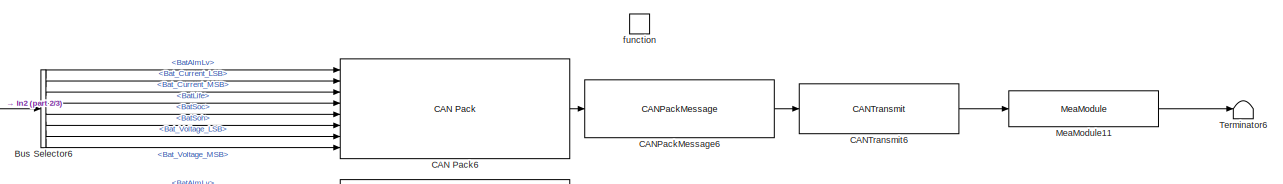
[diagram: Function-Call Subsystem2 - part 1/3, full width, top band]
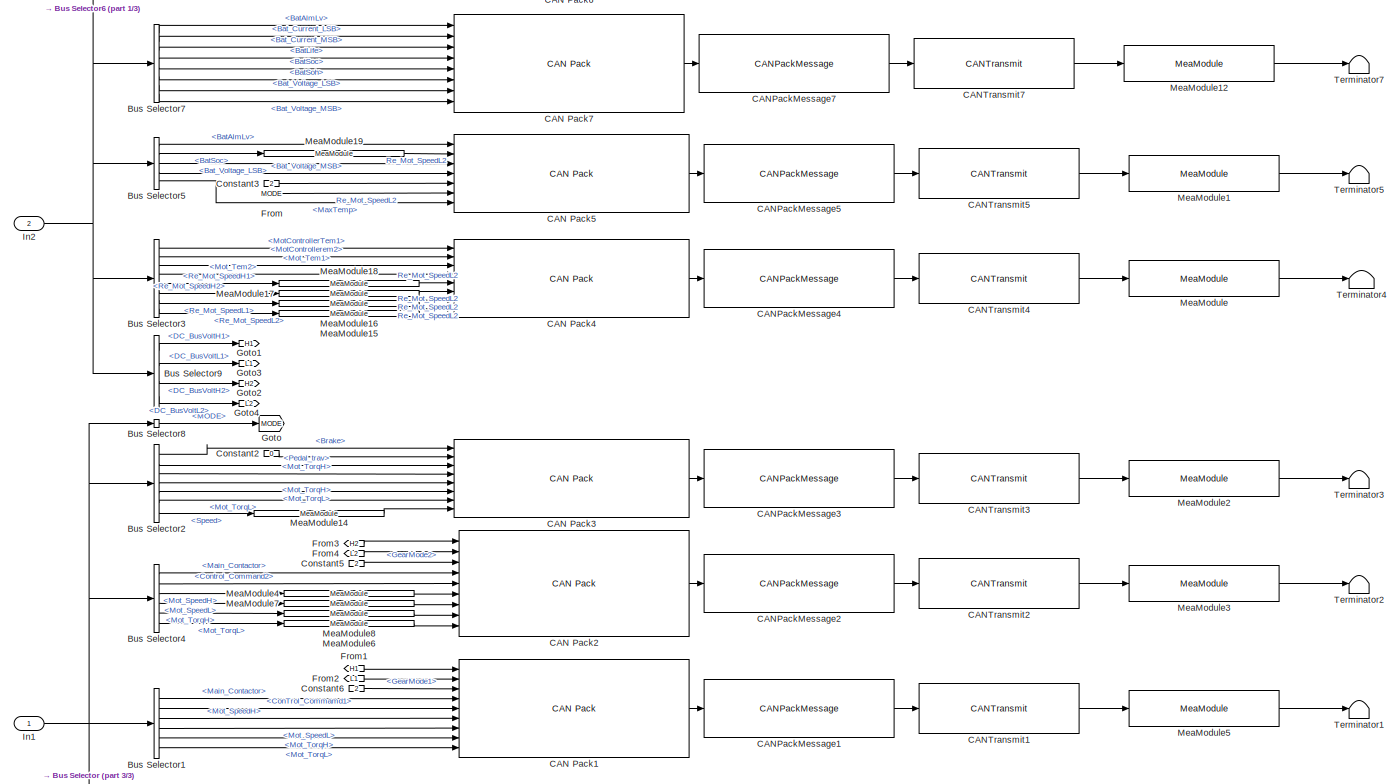
[diagram: Function-Call Subsystem2 - part 2/3, full width, middle band]
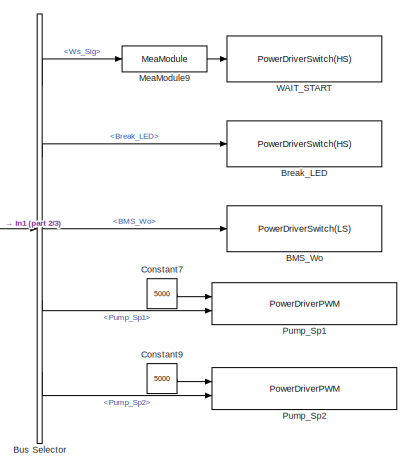
[diagram: Function-Call Subsystem2 - part 3/3, bottom left region]
BLOCK [SubSystem] Function-Call Subsystem2
  Ports = [2, 0, 0, 1]
  RequestExecContextInheritance = off
  TreatAsAtomicUnit = on
BLOCK [Reference] Function-Call Subsystem2/BMS_Wo  REF=ec5744lib/RapidECU_U3/02PowerDriverSwitch/PowerDriverSwitch(LS)
  Ports = [1]
  SourceBlock = ec5744lib/RapidECU_U3/02PowerDriverSwitch/PowerDriverSwitch(LS)
  SourceProductName = ECUCoder for MPC5744
  SourceType = RapidECU Power Driver Switch
BLOCK [Reference] Function-Call Subsystem2/Break_LED  REF=ec5744lib/RapidECU_U3/02PowerDriverSwitch/PowerDriverSwitch(HS)
  Ports = [1]
  SourceBlock = ec5744lib/RapidECU_U3/02PowerDriverSwitch/PowerDriverSwitch(HS)
  SourceProductName = ECUCoder for MPC5744
  SourceType = RapidECU Power Driver Switch
BLOCK [BusSelector] Function-Call Subsystem2/Bus Selector
  OutputAsBus = off
  OutputSignals = Ws_Sig,Break_LED,BMS_Wo,Pump_Sp1,Pump_Sp2
  Ports = [1, 5]
BLOCK [BusSelector] Function-Call Subsystem2/Bus Selector1
  OutputAsBus = off
  OutputSignals = Main_Contactor,ConTrol_Commamd1,Mot_SpeedH,Mot_SpeedL,Mot_TorqH,Mot_TorqL
  Ports = [1, 6]
BLOCK [BusSelector] Function-Call Subsystem2/Bus Selector2
  OutputAsBus = off
  OutputSignals = Brake,Pedal_trav,Mot_TorqH,Mot_TorqH,Mot_TorqL,Mot_TorqL,Speed
  Ports = [1, 7]
BLOCK [BusSelector] Function-Call Subsystem2/Bus Selector3
  OutputAsBus = off
  OutputSignals = MotControllerTem1,MotControllerem2,Mot_Tem1,Mot_Tem2,Re_Mot_SpeedH1,Re_Mot_SpeedH2,Re_Mot_SpeedL1,Re_Mot_SpeedL2
  Ports = [1, 8]
BLOCK [BusSelector] Function-Call Subsystem2/Bus Selector4
  OutputAsBus = off
  OutputSignals = Main_Contactor,Control_Command2,Mot_SpeedH,Mot_SpeedL,Mot_TorqH,Mot_TorqL
  Ports = [1, 6]
BLOCK [BusSelector] Function-Call Subsystem2/Bus Selector5
  OutputAsBus = off
  OutputSignals = BatAlmLv,BatSoc,Bat_Voltage_LSB,Bat_Voltage_MSB,MaxTemp
  Ports = [1, 5]
BLOCK [BusSelector] Function-Call Subsystem2/Bus Selector6
  Commented = on
  OutputAsBus = off
  OutputSignals = BatAlmLv,Bat_Current_LSB,Bat_Current_MSB,BatLife,BatSoc,BatSoh,Bat_Voltage_LSB,Bat_Voltage_MSB
  Ports = [1, 8]
BLOCK [BusSelector] Function-Call Subsystem2/Bus Selector7
  Commented = on
  OutputAsBus = off
  OutputSignals = BatAlmLv,Bat_Current_LSB,Bat_Current_MSB,BatLife,BatSoc,BatSoh,Bat_Voltage_LSB,Bat_Voltage_MSB
  Ports = [1, 8]
BLOCK [BusSelector] Function-Call Subsystem2/Bus Selector8
  OutputAsBus = off
  OutputSignals = MODE
  Ports = [1, 1]
BLOCK [BusSelector] Function-Call Subsystem2/Bus Selector9
  OutputAsBus = off
  OutputSignals = DC_BusVoltH1,DC_BusVoltL1,DC_BusVoltH2,DC_BusVoltL2
  Ports = [1, 4]
BLOCK [Reference] Function-Call Subsystem2/CAN Pack1  REF=canmsglib/CAN Pack
  Ports = [9, 1]
  SourceBlock = canmsglib/CAN Pack
  SourceProductBaseCode = XP
  SourceProductName = Simulink Real-Time
  SourceType = CAN Pack
BLOCK [Reference] Function-Call Subsystem2/CAN Pack2  REF=canmsglib/CAN Pack
  Ports = [9, 1]
  SourceBlock = canmsglib/CAN Pack
  SourceProductBaseCode = XP
  SourceProductName = Simulink Real-Time
  SourceType = CAN Pack
BLOCK [Reference] Function-Call Subsystem2/CAN Pack3  REF=canmsglib/CAN Pack
  Ports = [8, 1]
  SourceBlock = canmsglib/CAN Pack
  SourceProductBaseCode = XP
  SourceProductName = Simulink Real-Time
  SourceType = CAN Pack
BLOCK [Reference] Function-Call Subsystem2/CAN Pack4  REF=canmsglib/CAN Pack
  Ports = [8, 1]
  SourceBlock = canmsglib/CAN Pack
  SourceProductBaseCode = XP
  SourceProductName = Simulink Real-Time
  SourceType = CAN Pack
BLOCK [Reference] Function-Call Subsystem2/CAN Pack5  REF=canmsglib/CAN Pack
  Ports = [7, 1]
  SourceBlock = canmsglib/CAN Pack
  SourceProductBaseCode = XP
  SourceProductName = Simulink Real-Time
  SourceType = CAN Pack
BLOCK [Reference] Function-Call Subsystem2/CAN Pack6  REF=canmsglib/CAN Pack
  Commented = on
  Ports = [8, 1]
  SourceBlock = canmsglib/CAN Pack
  SourceProductBaseCode = XP
  SourceProductName = Simulink Real-Time
  SourceType = CAN Pack
BLOCK [Reference] Function-Call Subsystem2/CAN Pack7  REF=canmsglib/CAN Pack
  Commented = on
  Ports = [8, 1]
  SourceBlock = canmsglib/CAN Pack
  SourceProductBaseCode = XP
  SourceProductName = Simulink Real-Time
  SourceType = CAN Pack
BLOCK [Reference] Function-Call Subsystem2/CANPackMessage1  REF=ec5744lib/RapidECU_U3/04CANCommunication/CANPackMessage
  Ports = [1, 1]
  SourceBlock = ec5744lib/RapidECU_U3/04CANCommunication/CANPackMessage
  SourceProductName = ECUCoder for MPC5744
  SourceType = CAN Pack Message Transmit
BLOCK [Reference] Function-Call Subsystem2/CANPackMessage2  REF=ec5744lib/RapidECU_U3/04CANCommunication/CANPackMessage
  Ports = [1, 1]
  SourceBlock = ec5744lib/RapidECU_U3/04CANCommunication/CANPackMessage
  SourceProductName = ECUCoder for MPC5744
  SourceType = CAN Pack Message Transmit
BLOCK [Reference] Function-Call Subsystem2/CANPackMessage3  REF=ec5744lib/RapidECU_U3/04CANCommunication/CANPackMessage
  Ports = [1, 1]
  SourceBlock = ec5744lib/RapidECU_U3/04CANCommunication/CANPackMessage
  SourceProductName = ECUCoder for MPC5744
  SourceType = CAN Pack Message Transmit
BLOCK [Reference] Function-Call Subsystem2/CANPackMessage4  REF=ec5744lib/RapidECU_U3/04CANCommunication/CANPackMessage
  Ports = [1, 1]
  SourceBlock = ec5744lib/RapidECU_U3/04CANCommunication/CANPackMessage
  SourceProductName = ECUCoder for MPC5744
  SourceType = CAN Pack Message Transmit
BLOCK [Reference] Function-Call Subsystem2/CANPackMessage5  REF=ec5744lib/RapidECU_U3/04CANCommunication/CANPackMessage
  Ports = [1, 1]
  SourceBlock = ec5744lib/RapidECU_U3/04CANCommunication/CANPackMessage
  SourceProductName = ECUCoder for MPC5744
  SourceType = CAN Pack Message Transmit
BLOCK [Reference] Function-Call Subsystem2/CANPackMessage6  REF=ec5744lib/RapidECU_U3/04CANCommunication/CANPackMessage
  Commented = on
  Ports = [1, 1]
  SourceBlock = ec5744lib/RapidECU_U3/04CANCommunication/CANPackMessage
  SourceProductName = ECUCoder for MPC5744
  SourceType = CAN Pack Message Transmit
BLOCK [Reference] Function-Call Subsystem2/CANPackMessage7  REF=ec5744lib/RapidECU_U3/04CANCommunication/CANPackMessage
  Commented = on
  Ports = [1, 1]
  SourceBlock = ec5744lib/RapidECU_U3/04CANCommunication/CANPackMessage
  SourceProductName = ECUCoder for MPC5744
  SourceType = CAN Pack Message Transmit
BLOCK [Reference] Function-Call Subsystem2/CANTransmit1  REF=ec5744lib/RapidECU_U3/04CANCommunication/CANTransmit
  Ports = [1, 1]
  SourceBlock = ec5744lib/RapidECU_U3/04CANCommunication/CANTransmit
  SourceProductName = ECUCoder for MPC5744
  SourceType = MPC5744 CAN Transmit
BLOCK [Reference] Function-Call Subsystem2/CANTransmit2  REF=ec5744lib/RapidECU_U3/04CANCommunication/CANTransmit
  Ports = [1, 1]
  SourceBlock = ec5744lib/RapidECU_U3/04CANCommunication/CANTransmit
  SourceProductName = ECUCoder for MPC5744
  SourceType = MPC5744 CAN Transmit
BLOCK [Reference] Function-Call Subsystem2/CANTransmit3  REF=ec5744lib/RapidECU_U3/04CANCommunication/CANTransmit
  Ports = [1, 1]
  SourceBlock = ec5744lib/RapidECU_U3/04CANCommunication/CANTransmit
  SourceProductName = ECUCoder for MPC5744
  SourceType = MPC5744 CAN Transmit
BLOCK [Reference] Function-Call Subsystem2/CANTransmit4  REF=ec5744lib/RapidECU_U3/04CANCommunication/CANTransmit
  Ports = [1, 1]
  SourceBlock = ec5744lib/RapidECU_U3/04CANCommunication/CANTransmit
  SourceProductName = ECUCoder for MPC5744
  SourceType = MPC5744 CAN Transmit
BLOCK [Reference] Function-Call Subsystem2/CANTransmit5  REF=ec5744lib/RapidECU_U3/04CANCommunication/CANTransmit
  Ports = [1, 1]
  SourceBlock = ec5744lib/RapidECU_U3/04CANCommunication/CANTransmit
  SourceProductName = ECUCoder for MPC5744
  SourceType = MPC5744 CAN Transmit
BLOCK [Reference] Function-Call Subsystem2/CANTransmit6  REF=ec5744lib/RapidECU_U3/04CANCommunication/CANTransmit
  Commented = on
  Ports = [1, 1]
  SourceBlock = ec5744lib/RapidECU_U3/04CANCommunication/CANTransmit
  SourceProductName = ECUCoder for MPC5744
  SourceType = MPC5744 CAN Transmit
BLOCK [Reference] Function-Call Subsystem2/CANTransmit7  REF=ec5744lib/RapidECU_U3/04CANCommunication/CANTransmit
  Commented = on
  Ports = [1, 1]
  SourceBlock = ec5744lib/RapidECU_U3/04CANCommunication/CANTransmit
  SourceProductName = ECUCoder for MPC5744
  SourceType = MPC5744 CAN Transmit
BLOCK [Constant] Function-Call Subsystem2/Constant2
  Value = 0
BLOCK [Constant] Function-Call Subsystem2/Constant3
  Value = 2
BLOCK [Constant] Function-Call Subsystem2/Constant5
  Value = 2
BLOCK [Constant] Function-Call Subsystem2/Constant6
  Value = 2
BLOCK [Constant] Function-Call Subsystem2/Constant7
  OutDataTypeStr = uint16
  Value = 5000
BLOCK [Constant] Function-Call Subsystem2/Constant9
  OutDataTypeStr = uint16
  Value = 5000
BLOCK [From] Function-Call Subsystem2/From
  GotoTag = MODE
BLOCK [From] Function-Call Subsystem2/From1
  GotoTag = H1
BLOCK [From] Function-Call Subsystem2/From2
  GotoTag = L1
BLOCK [From] Function-Call Subsystem2/From3
  GotoTag = H2
BLOCK [From] Function-Call Subsystem2/From4
  GotoTag = L2
BLOCK [Goto] Function-Call Subsystem2/Goto
  GotoTag = MODE
BLOCK [Goto] Function-Call Subsystem2/Goto1
  GotoTag = H1
BLOCK [Goto] Function-Call Subsystem2/Goto2
  GotoTag = H2
BLOCK [Goto] Function-Call Subsystem2/Goto3
  GotoTag = L1
BLOCK [Goto] Function-Call Subsystem2/Goto4
  GotoTag = L2
BLOCK [Inport] Function-Call Subsystem2/In1
  IconDisplay = Port number
BLOCK [Inport] Function-Call Subsystem2/In2
  IconDisplay = Port number
  Port = 2
BLOCK [Reference] Function-Call Subsystem2/MeaModule  REF=ec5744lib/RapidECU_U3/07Calibration/MeaModule
  Ports = [1, 1]
  SourceBlock = ec5744lib/RapidECU_U3/07Calibration/MeaModule
  SourceProductName = ECUCoder for MPC5744
  SourceType = Measurement Module
BLOCK [Reference] Function-Call Subsystem2/MeaModule1  REF=ec5744lib/RapidECU_U3/07Calibration/MeaModule
  Ports = [1, 1]
  SourceBlock = ec5744lib/RapidECU_U3/07Calibration/MeaModule
  SourceProductName = ECUCoder for MPC5744
  SourceType = Measurement Module
BLOCK [Reference] Function-Call Subsystem2/MeaModule11  REF=ec5744lib/RapidECU_U3/07Calibration/MeaModule
  Commented = on
  Ports = [1, 1]
  SourceBlock = ec5744lib/RapidECU_U3/07Calibration/MeaModule
  SourceProductName = ECUCoder for MPC5744
  SourceType = Measurement Module
BLOCK [Reference] Function-Call Subsystem2/MeaModule12  REF=ec5744lib/RapidECU_U3/07Calibration/MeaModule
  Commented = on
  Ports = [1, 1]
  SourceBlock = ec5744lib/RapidECU_U3/07Calibration/MeaModule
  SourceProductName = ECUCoder for MPC5744
  SourceType = Measurement Module
BLOCK [Reference] Function-Call Subsystem2/MeaModule14  REF=ec5744lib/RapidECU_U3/07Calibration/MeaModule
  Ports = [1, 1]
  SourceBlock = ec5744lib/RapidECU_U3/07Calibration/MeaModule
  SourceProductName = ECUCoder for MPC5744
  SourceType = Measurement Module
BLOCK [Reference] Function-Call Subsystem2/MeaModule15  REF=ec5744lib/RapidECU_U3/07Calibration/MeaModule
  Ports = [1, 1]
  SourceBlock = ec5744lib/RapidECU_U3/07Calibration/MeaModule
  SourceProductName = ECUCoder for MPC5744
  SourceType = Measurement Module
BLOCK [Reference] Function-Call Subsystem2/MeaModule16  REF=ec5744lib/RapidECU_U3/07Calibration/MeaModule
  Ports = [1, 1]
  SourceBlock = ec5744lib/RapidECU_U3/07Calibration/MeaModule
  SourceProductName = ECUCoder for MPC5744
  SourceType = Measurement Module
BLOCK [Reference] Function-Call Subsystem2/MeaModule17  REF=ec5744lib/RapidECU_U3/07Calibration/MeaModule
  Ports = [1, 1]
  SourceBlock = ec5744lib/RapidECU_U3/07Calibration/MeaModule
  SourceProductName = ECUCoder for MPC5744
  SourceType = Measurement Module
BLOCK [Reference] Function-Call Subsystem2/MeaModule18  REF=ec5744lib/RapidECU_U3/07Calibration/MeaModule
  Ports = [1, 1]
  SourceBlock = ec5744lib/RapidECU_U3/07Calibration/MeaModule
  SourceProductName = ECUCoder for MPC5744
  SourceType = Measurement Module
BLOCK [Reference] Function-Call Subsystem2/MeaModule19  REF=ec5744lib/RapidECU_U3/07Calibration/MeaModule
  Ports = [1, 1]
  SourceBlock = ec5744lib/RapidECU_U3/07Calibration/MeaModule
  SourceProductName = ECUCoder for MPC5744
  SourceType = Measurement Module
BLOCK [Reference] Function-Call Subsystem2/MeaModule2  REF=ec5744lib/RapidECU_U3/07Calibration/MeaModule
  Ports = [1, 1]
  SourceBlock = ec5744lib/RapidECU_U3/07Calibration/MeaModule
  SourceProductName = ECUCoder for MPC5744
  SourceType = Measurement Module
BLOCK [Reference] Function-Call Subsystem2/MeaModule3  REF=ec5744lib/RapidECU_U3/07Calibration/MeaModule
  Ports = [1, 1]
  SourceBlock = ec5744lib/RapidECU_U3/07Calibration/MeaModule
  SourceProductName = ECUCoder for MPC5744
  SourceType = Measurement Module
BLOCK [Reference] Function-Call Subsystem2/MeaModule4  REF=ec5744lib/RapidECU_U3/07Calibration/MeaModule
  Ports = [1, 1]
  SourceBlock = ec5744lib/RapidECU_U3/07Calibration/MeaModule
  SourceProductName = ECUCoder for MPC5744
  SourceType = Measurement Module
BLOCK [Reference] Function-Call Subsystem2/MeaModule5  REF=ec5744lib/RapidECU_U3/07Calibration/MeaModule
  Ports = [1, 1]
  SourceBlock = ec5744lib/RapidECU_U3/07Calibration/MeaModule
  SourceProductName = ECUCoder for MPC5744
  SourceType = Measurement Module
BLOCK [Reference] Function-Call Subsystem2/MeaModule6  REF=ec5744lib/RapidECU_U3/07Calibration/MeaModule
  Ports = [1, 1]
  SourceBlock = ec5744lib/RapidECU_U3/07Calibration/MeaModule
  SourceProductName = ECUCoder for MPC5744
  SourceType = Measurement Module
BLOCK [Reference] Function-Call Subsystem2/MeaModule7  REF=ec5744lib/RapidECU_U3/07Calibration/MeaModule
  Ports = [1, 1]
  SourceBlock = ec5744lib/RapidECU_U3/07Calibration/MeaModule
  SourceProductName = ECUCoder for MPC5744
  SourceType = Measurement Module
BLOCK [Reference] Function-Call Subsystem2/MeaModule8  REF=ec5744lib/RapidECU_U3/07Calibration/MeaModule
  Ports = [1, 1]
  SourceBlock = ec5744lib/RapidECU_U3/07Calibration/MeaModule
  SourceProductName = ECUCoder for MPC5744
  SourceType = Measurement Module
BLOCK [Reference] Function-Call Subsystem2/MeaModule9  REF=ec5744lib/RapidECU_U3/07Calibration/MeaModule
  Ports = [1, 1]
  SourceBlock = ec5744lib/RapidECU_U3/07Calibration/MeaModule
  SourceProductName = ECUCoder for MPC5744
  SourceType = Measurement Module
BLOCK [Reference] Function-Call Subsystem2/Pump_Sp1  REF=ec5744lib/RapidECU_U3/03PowerDriverPWM/PowerDriverPWM
  Ports = [2]
  SourceBlock = ec5744lib/RapidECU_U3/03PowerDriverPWM/PowerDriverPWM
  SourceProductName = ECUCoder for MPC5744
  SourceType = RapidECU Power Driver PWM
BLOCK [Reference] Function-Call Subsystem2/Pump_Sp2  REF=ec5744lib/RapidECU_U3/03PowerDriverPWM/PowerDriverPWM
  Ports = [2]
  SourceBlock = ec5744lib/RapidECU_U3/03PowerDriverPWM/PowerDriverPWM
  SourceProductName = ECUCoder for MPC5744
  SourceType = RapidECU Power Driver PWM
BLOCK [Terminator] Function-Call Subsystem2/Terminator1
BLOCK [Terminator] Function-Call Subsystem2/Terminator2
BLOCK [Terminator] Function-Call Subsystem2/Terminator3
BLOCK [Terminator] Function-Call Subsystem2/Terminator4
BLOCK [Terminator] Function-Call Subsystem2/Terminator5
BLOCK [Terminator] Function-Call Subsystem2/Terminator6
  Commented = on
BLOCK [Terminator] Function-Call Subsystem2/Terminator7
  Commented = on
BLOCK [Reference] Function-Call Subsystem2/WAIT_START  REF=ec5744lib/RapidECU_U3/02PowerDriverSwitch/PowerDriverSwitch(HS)
  Ports = [1]
  SourceBlock = ec5744lib/RapidECU_U3/02PowerDriverSwitch/PowerDriverSwitch(HS)
  SourceProductName = ECUCoder for MPC5744
  SourceType = RapidECU Power Driver Switch
BLOCK [TriggerPort] Function-Call Subsystem2/function
  Ports = []
  StatesWhenEnabling = held
  TriggerType = function-call
  VariantControl = Variant
BLOCK [Reference] RapidECUSetting  REF=ec5744lib/RapidECU_U3/RapidECUSetting
  Ports = []
  SourceBlock = ec5744lib/RapidECU_U3/RapidECUSetting
  SourceProductName = ECUCoder for MPC5744
  SourceType = RapidECUSetting
ANNOTATION Function-Call Subsystem: 刹车只做一路
ANNOTATION Function-Call Subsystem: 这个东西可能要走中断
ANNOTATION Function-Call Subsystem/Function-Call Subsystem/Enabled Subsystem: 转化数据类型也许可以把内存降到更低，但是我觉得这个就是后话了[doge]
ANNOTATION Function-Call Subsystem/Function-Call Subsystem1/Enabled Subsystem: 转化数据类型也许可以把内存降到更低，但是我觉得这个就是后话了[doge]
ANNOTATION Function-Call Subsystem1/Subsystem: 油压范围在500到4500之间
ANNOTATION Function-Call Subsystem1/Subsystem: 输出12V高电平给蜂鸣器和待驶指示 灯，启动鸣笛，指示灯亮
ANNOTATION Function-Call Subsystem1/Torque_Control: 查一下新的传感器的电压范围
ANNOTATION Function-Call Subsystem1/Torque_Control: 电机控制器不限制，具体限制做 在这里
LINE 10ms1:1 -> Function-Call Subsystem:trigger
LINE 10ms2:1 -> Function-Call Subsystem2:trigger
LINE 10ms:1 -> Function-Call Subsystem1:trigger
LINE Function-Call Subsystem/ADS1:1 -> Function-Call Subsystem/Bus Creator:36
LINE Function-Call Subsystem/ADS2:1 -> Function-Call Subsystem/Bus Creator:37
LINE Function-Call Subsystem/Angle:1 -> Function-Call Subsystem/Bus Creator:39
LINE Function-Call Subsystem/Brake:1 -> Function-Call Subsystem/Bus Creator:38
LINE Function-Call Subsystem/Bus Creator:1 -> Function-Call Subsystem/Out1:1
LINE Function-Call Subsystem/CANReceive1:1 -> Function-Call Subsystem/Function-Call Subsystem1:trigger
NET Function-Call Subsystem/CANReceive1:2 -> Function-Call Subsystem/Bus Creator:17, Function-Call Subsystem/Function-Call Subsystem1:1
LINE Function-Call Subsystem/CANReceive1:3 -> Function-Call Subsystem/Function-Call Subsystem1:2
LINE Function-Call Subsystem/CANReceive1:4 -> Function-Call Subsystem/Function-Call Subsystem1:3
LINE Function-Call Subsystem/CANReceive1:5 -> Function-Call Subsystem/Terminator1:1
LINE Function-Call Subsystem/CANReceive2:1 -> Function-Call Subsystem/Function-Call Subsystem2:trigger
NET Function-Call Subsystem/CANReceive2:2 -> Function-Call Subsystem/Bus Creator:12, Function-Call Subsystem/Function-Call Subsystem2:1
LINE Function-Call Subsystem/CANReceive2:3 -> Function-Call Subsystem/Function-Call Subsystem2:2
LINE Function-Call Subsystem/CANReceive2:4 -> Function-Call Subsystem/Function-Call Subsystem2:3
LINE Function-Call Subsystem/CANReceive2:5 -> Function-Call Subsystem/Terminator2:1
LINE Function-Call Subsystem/CANReceive3:1 -> Function-Call Subsystem/Function-Call Subsystem3:trigger
NET Function-Call Subsystem/CANReceive3:2 -> Function-Call Subsystem/Bus Creator:6, Function-Call Subsystem/Function-Call Subsystem3:1
LINE Function-Call Subsystem/CANReceive3:3 -> Function-Call Subsystem/Function-Call Subsystem3:2
LINE Function-Call Subsystem/CANReceive3:4 -> Function-Call Subsystem/Function-Call Subsystem3:3
LINE Function-Call Subsystem/CANReceive3:5 -> Function-Call Subsystem/Terminator3:1
LINE Function-Call Subsystem/CANReceive4:1 -> Function-Call Subsystem/Function-Call Subsystem4:trigger
NET Function-Call Subsystem/CANReceive4:2 -> Function-Call Subsystem/Bus Creator:1, Function-Call Subsystem/Function-Call Subsystem4:1
LINE Function-Call Subsystem/CANReceive4:3 -> Function-Call Subsystem/Function-Call Subsystem4:2
LINE Function-Call Subsystem/CANReceive4:4 -> Function-Call Subsystem/Function-Call Subsystem4:3
LINE Function-Call Subsystem/CANReceive4:5 -> Function-Call Subsystem/Terminator4:1
LINE Function-Call Subsystem/CANReceive5:1 -> Function-Call Subsystem/Function-Call Subsystem5:trigger
NET Function-Call Subsystem/CANReceive5:2 -> Function-Call Subsystem/Bus Creator:33, Function-Call Subsystem/Function-Call Subsystem5:1
LINE Function-Call Subsystem/CANReceive5:3 -> Function-Call Subsystem/Function-Call Subsystem5:2
LINE Function-Call Subsystem/CANReceive5:4 -> Function-Call Subsystem/Function-Call Subsystem5:3
LINE Function-Call Subsystem/CANReceive5:5 -> Function-Call Subsystem/Terminator5:1
LINE Function-Call Subsystem/CANReceive6:1 -> Function-Call Subsystem/Function-Call Subsystem6:trigger
LINE Function-Call Subsystem/CANReceive6:2 -> Function-Call Subsystem/Function-Call Subsystem6:1
LINE Function-Call Subsystem/CANReceive6:3 -> Function-Call Subsystem/Function-Call Subsystem6:2
LINE Function-Call Subsystem/CANReceive6:4 -> Function-Call Subsystem/Function-Call Subsystem6:3
LINE Function-Call Subsystem/CANReceive6:5 -> Function-Call Subsystem/Terminator6:1
LINE Function-Call Subsystem/CANReceive:1 -> Function-Call Subsystem/Function-Call Subsystem:trigger
NET Function-Call Subsystem/CANReceive:2 -> Function-Call Subsystem/Bus Creator:23, Function-Call Subsystem/Function-Call Subsystem:1
LINE Function-Call Subsystem/CANReceive:3 -> Function-Call Subsystem/Function-Call Subsystem:2
LINE Function-Call Subsystem/CANReceive:4 -> Function-Call Subsystem/Function-Call Subsystem:3
LINE Function-Call Subsystem/CANReceive:5 -> Function-Call Subsystem/Terminator:1
LINE Function-Call Subsystem/FrequencyRead1:1 -> Function-Call Subsystem/MeaModule9:1
LINE Function-Call Subsystem/FrequencyRead:1 -> Function-Call Subsystem/MeaModule8:1
LINE Function-Call Subsystem/Function-Call Subsystem/Enabled Subsystem/CAN Unpack:1 -> Function-Call Subsystem/Function-Call Subsystem/Enabled Subsystem/BatAlmLv :1
LINE Function-Call Subsystem/Function-Call Subsystem/Enabled Subsystem/CAN Unpack:2 -> Function-Call Subsystem/Function-Call Subsystem/Enabled Subsystem/Bat_Current_LSB:1
LINE Function-Call Subsystem/Function-Call Subsystem/Enabled Subsystem/CAN Unpack:3 -> Function-Call Subsystem/Function-Call Subsystem/Enabled Subsystem/Bat_Current_MSB:1
LINE Function-Call Subsystem/Function-Call Subsystem/Enabled Subsystem/CAN Unpack:4 -> Function-Call Subsystem/Function-Call Subsystem/Enabled Subsystem/BatLife:1
LINE Function-Call Subsystem/Function-Call Subsystem/Enabled Subsystem/CAN Unpack:5 -> Function-Call Subsystem/Function-Call Subsystem/Enabled Subsystem/BatSoc:1
LINE Function-Call Subsystem/Function-Call Subsystem/Enabled Subsystem/CAN Unpack:6 -> Function-Call Subsystem/Function-Call Subsystem/Enabled Subsystem/BatSoh:1
LINE Function-Call Subsystem/Function-Call Subsystem/Enabled Subsystem/CAN Unpack:7 -> Function-Call Subsystem/Function-Call Subsystem/Enabled Subsystem/BatState:1
LINE Function-Call Subsystem/Function-Call Subsystem/Enabled Subsystem/CAN Unpack:8 -> Function-Call Subsystem/Function-Call Subsystem/Enabled Subsystem/Bat_Voltage_LSB :1
LINE Function-Call Subsystem/Function-Call Subsystem/Enabled Subsystem/CAN Unpack:9 -> Function-Call Subsystem/Function-Call Subsystem/Enabled Subsystem/Bat_Voltage_MSB :1
LINE Function-Call Subsystem/Function-Call Subsystem/Enabled Subsystem/CANUnPackMessage:1 -> Function-Call Subsystem/Function-Call Subsystem/Enabled Subsystem/CAN Unpack:1
LINE Function-Call Subsystem/Function-Call Subsystem/Enabled Subsystem/In1:1 -> Function-Call Subsystem/Function-Call Subsystem/Enabled Subsystem/CANUnPackMessage:1
LINE Function-Call Subsystem/Function-Call Subsystem/Enabled Subsystem/In2:1 -> Function-Call Subsystem/Function-Call Subsystem/Enabled Subsystem/CANUnPackMessage:2
LINE Function-Call Subsystem/Function-Call Subsystem/Enabled Subsystem:1 -> Function-Call Subsystem/Function-Call Subsystem/Bat_Voltage_LSB:1
LINE Function-Call Subsystem/Function-Call Subsystem/Enabled Subsystem:2 -> Function-Call Subsystem/Function-Call Subsystem/Bat_Current_MSB:1
LINE Function-Call Subsystem/Function-Call Subsystem/Enabled Subsystem:3 -> Function-Call Subsystem/Function-Call Subsystem/BatAlmLv:1
LINE Function-Call Subsystem/Function-Call Subsystem/Enabled Subsystem:4 -> Function-Call Subsystem/Function-Call Subsystem/BatLife:1
LINE Function-Call Subsystem/Function-Call Subsystem/Enabled Subsystem:5 -> Function-Call Subsystem/Function-Call Subsystem/BatSoc:1
LINE Function-Call Subsystem/Function-Call Subsystem/Enabled Subsystem:6 -> Function-Call Subsystem/Function-Call Subsystem/BatSoh:1
LINE Function-Call Subsystem/Function-Call Subsystem/Enabled Subsystem:7 -> Function-Call Subsystem/Function-Call Subsystem/BatState:1
LINE Function-Call Subsystem/Function-Call Subsystem/Enabled Subsystem:8 -> Function-Call Subsystem/Function-Call Subsystem/Bat_Current_LSB:1
LINE Function-Call Subsystem/Function-Call Subsystem/Enabled Subsystem:9 -> Function-Call Subsystem/Function-Call Subsystem/Bat_Voltage_MSB:1
LINE Function-Call Subsystem/Function-Call Subsystem/ID:1 -> Function-Call Subsystem/Function-Call Subsystem/Enabled Subsystem:1
LINE Function-Call Subsystem/Function-Call Subsystem/In1:1 -> Function-Call Subsystem/Function-Call Subsystem/Enabled Subsystem:enable
LINE Function-Call Subsystem/Function-Call Subsystem/Msg:1 -> Function-Call Subsystem/Function-Call Subsystem/Enabled Subsystem:2
LINE Function-Call Subsystem/Function-Call Subsystem1/Enabled Subsystem/CAN Unpack:1 -> Function-Call Subsystem/Function-Call Subsystem1/Enabled Subsystem/Terminator:1
LINE Function-Call Subsystem/Function-Call Subsystem1/Enabled Subsystem/CAN Unpack:2 -> Function-Call Subsystem/Function-Call Subsystem1/Enabled Subsystem/Terminator1:1
LINE Function-Call Subsystem/Function-Call Subsystem1/Enabled Subsystem/CAN Unpack:3 -> Function-Call Subsystem/Function-Call Subsystem1/Enabled Subsystem/MCU1State1:1
LINE Function-Call Subsystem/Function-Call Subsystem1/Enabled Subsystem/CAN Unpack:4 -> Function-Call Subsystem/Function-Call Subsystem1/Enabled Subsystem/Terminator3:1
LINE Function-Call Subsystem/Function-Call Subsystem1/Enabled Subsystem/CAN Unpack:5 -> Function-Call Subsystem/Function-Call Subsystem1/Enabled Subsystem/Pe_Mot_SpeedH1:1
LINE Function-Call Subsystem/Function-Call Subsystem1/Enabled Subsystem/CAN Unpack:6 -> Function-Call Subsystem/Function-Call Subsystem1/Enabled Subsystem/Re_MotSpeedL1:1
LINE Function-Call Subsystem/Function-Call Subsystem1/Enabled Subsystem/CAN Unpack:7 -> Function-Call Subsystem/Function-Call Subsystem1/Enabled Subsystem/Re_Mot_TorqueH1:1
LINE Function-Call Subsystem/Function-Call Subsystem1/Enabled Subsystem/CAN Unpack:8 -> Function-Call Subsystem/Function-Call Subsystem1/Enabled Subsystem/Re_MotTorqueL1:1
LINE Function-Call Subsystem/Function-Call Subsystem1/Enabled Subsystem/CAN Unpack:9 -> Function-Call Subsystem/Function-Call Subsystem1/Enabled Subsystem/Terminator4:1
LINE Function-Call Subsystem/Function-Call Subsystem1/Enabled Subsystem/CANUnPackMessage:1 -> Function-Call Subsystem/Function-Call Subsystem1/Enabled Subsystem/CAN Unpack:1
LINE Function-Call Subsystem/Function-Call Subsystem1/Enabled Subsystem/In1:1 -> Function-Call Subsystem/Function-Call Subsystem1/Enabled Subsystem/CANUnPackMessage:1
LINE Function-Call Subsystem/Function-Call Subsystem1/Enabled Subsystem/In2:1 -> Function-Call Subsystem/Function-Call Subsystem1/Enabled Subsystem/CANUnPackMessage:2
LINE Function-Call Subsystem/Function-Call Subsystem1/Enabled Subsystem:1 -> Function-Call Subsystem/Function-Call Subsystem1/Re_Mot_SpeedH1:1
LINE Function-Call Subsystem/Function-Call Subsystem1/Enabled Subsystem:2 -> Function-Call Subsystem/Function-Call Subsystem1/Re_Mot_SpeedL1:1
LINE Function-Call Subsystem/Function-Call Subsystem1/Enabled Subsystem:3 -> Function-Call Subsystem/Function-Call Subsystem1/Re_Mot_TorqueH1:1
LINE Function-Call Subsystem/Function-Call Subsystem1/Enabled Subsystem:4 -> Function-Call Subsystem/Function-Call Subsystem1/Re_Mot_TorqueL1:1
LINE Function-Call Subsystem/Function-Call Subsystem1/Enabled Subsystem:5 -> Function-Call Subsystem/Function-Call Subsystem1/Subsystem:1
LINE Function-Call Subsystem/Function-Call Subsystem1/ID:1 -> Function-Call Subsystem/Function-Call Subsystem1/Enabled Subsystem:1
LINE Function-Call Subsystem/Function-Call Subsystem1/In1:1 -> Function-Call Subsystem/Function-Call Subsystem1/Enabled Subsystem:enable
LINE Function-Call Subsystem/Function-Call Subsystem1/Msg:1 -> Function-Call Subsystem/Function-Call Subsystem1/Enabled Subsystem:2
LINE Function-Call Subsystem/Function-Call Subsystem1/Subsystem/Chart:1 -> Function-Call Subsystem/Function-Call Subsystem1/Subsystem/MeaModule1:1
LINE Function-Call Subsystem/Function-Call Subsystem1/Subsystem/Data Type Conversion1:1 -> Function-Call Subsystem/Function-Call Subsystem1/Subsystem/Chart:1
LINE Function-Call Subsystem/Function-Call Subsystem1/Subsystem/MCU1_State:1 -> Function-Call Subsystem/Function-Call Subsystem1/Subsystem/Data Type Conversion1:1
LINE Function-Call Subsystem/Function-Call Subsystem1/Subsystem/MeaModule1:1 -> Function-Call Subsystem/Function-Call Subsystem1/Subsystem/MCU1_rdy:1
LINE Function-Call Subsystem/Function-Call Subsystem1/Subsystem1/Chart:1 -> Function-Call Subsystem/Function-Call Subsystem1/Subsystem1/MeaModule1:1
LINE Function-Call Subsystem/Function-Call Subsystem1/Subsystem1/DatH:1 -> Function-Call Subsystem/Function-Call Subsystem1/Subsystem1/Data Type Conversion1:1
LINE Function-Call Subsystem/Function-Call Subsystem1/Subsystem1/DatL:1 -> Function-Call Subsystem/Function-Call Subsystem1/Subsystem1/Data Type Conversion:1
LINE Function-Call Subsystem/Function-Call Subsystem1/Subsystem1/Data Type Conversion1:1 -> Function-Call Subsystem/Function-Call Subsystem1/Subsystem1/Chart:1
LINE Function-Call Subsystem/Function-Call Subsystem1/Subsystem1/Data Type Conversion:1 -> Function-Call Subsystem/Function-Call Subsystem1/Subsystem1/Chart:2
LINE Function-Call Subsystem/Function-Call Subsystem1/Subsystem1/MeaModule1:1 -> Function-Call Subsystem/Function-Call Subsystem1/Subsystem1/DC_BusVolt1:1
LINE Function-Call Subsystem/Function-Call Subsystem1/Subsystem:1 -> Function-Call Subsystem/Function-Call Subsystem1/MCU1_rdy:1
LINE Function-Call Subsystem/Function-Call Subsystem1:1 -> Function-Call Subsystem/Bus Creator:18
LINE Function-Call Subsystem/Function-Call Subsystem1:2 -> Function-Call Subsystem/Bus Creator:19
LINE Function-Call Subsystem/Function-Call Subsystem1:3 -> Function-Call Subsystem/Bus Creator:20
LINE Function-Call Subsystem/Function-Call Subsystem1:4 -> Function-Call Subsystem/Bus Creator:21
LINE Function-Call Subsystem/Function-Call Subsystem1:5 -> Function-Call Subsystem/Bus Creator:22
LINE Function-Call Subsystem/Function-Call Subsystem2/Enabled Subsystem/CAN Unpack:1 -> Function-Call Subsystem/Function-Call Subsystem2/Enabled Subsystem/Terminator:1
LINE Function-Call Subsystem/Function-Call Subsystem2/Enabled Subsystem/CAN Unpack:2 -> Function-Call Subsystem/Function-Call Subsystem2/Enabled Subsystem/Terminator1:1
LINE Function-Call Subsystem/Function-Call Subsystem2/Enabled Subsystem/CAN Unpack:3 -> Function-Call Subsystem/Function-Call Subsystem2/Enabled Subsystem/Terminator2:1
LINE Function-Call Subsystem/Function-Call Subsystem2/Enabled Subsystem/CAN Unpack:4 -> Function-Call Subsystem/Function-Call Subsystem2/Enabled Subsystem/Terminator3:1
LINE Function-Call Subsystem/Function-Call Subsystem2/Enabled Subsystem/CAN Unpack:5 -> Function-Call Subsystem/Function-Call Subsystem2/Enabled Subsystem/DC_Bus_VoltH1:1
LINE Function-Call Subsystem/Function-Call Subsystem2/Enabled Subsystem/CAN Unpack:6 -> Function-Call Subsystem/Function-Call Subsystem2/Enabled Subsystem/DC_Bus_VoltL1:1
LINE Function-Call Subsystem/Function-Call Subsystem2/Enabled Subsystem/CAN Unpack:7 -> Function-Call Subsystem/Function-Call Subsystem2/Enabled Subsystem/MotControllerTem1:1
LINE Function-Call Subsystem/Function-Call Subsystem2/Enabled Subsystem/CAN Unpack:8 -> Function-Call Subsystem/Function-Call Subsystem2/Enabled Subsystem/Mot_Tem1:1
LINE Function-Call Subsystem/Function-Call Subsystem2/Enabled Subsystem/CANUnPackMessage:1 -> Function-Call Subsystem/Function-Call Subsystem2/Enabled Subsystem/CAN Unpack:1
LINE Function-Call Subsystem/Function-Call Subsystem2/Enabled Subsystem/In1:1 -> Function-Call Subsystem/Function-Call Subsystem2/Enabled Subsystem/CANUnPackMessage:1
LINE Function-Call Subsystem/Function-Call Subsystem2/Enabled Subsystem/In2:1 -> Function-Call Subsystem/Function-Call Subsystem2/Enabled Subsystem/CANUnPackMessage:2
LINE Function-Call Subsystem/Function-Call Subsystem2/Enabled Subsystem:1 -> Function-Call Subsystem/Function-Call Subsystem2/MotControllerTem1:1
LINE Function-Call Subsystem/Function-Call Subsystem2/Enabled Subsystem:2 -> Function-Call Subsystem/Function-Call Subsystem2/Mot_Tem1:1
LINE Function-Call Subsystem/Function-Call Subsystem2/Enabled Subsystem:3 -> Function-Call Subsystem/Function-Call Subsystem2/DC_BusVoltH1:1
LINE Function-Call Subsystem/Function-Call Subsystem2/Enabled Subsystem:4 -> Function-Call Subsystem/Function-Call Subsystem2/DC_BusVoltL1:1
LINE Function-Call Subsystem/Function-Call Subsystem2/ID:1 -> Function-Call Subsystem/Function-Call Subsystem2/Enabled Subsystem:1
LINE Function-Call Subsystem/Function-Call Subsystem2/In1:1 -> Function-Call Subsystem/Function-Call Subsystem2/Enabled Subsystem:enable
LINE Function-Call Subsystem/Function-Call Subsystem2/Msg:1 -> Function-Call Subsystem/Function-Call Subsystem2/Enabled Subsystem:2
LINE Function-Call Subsystem/Function-Call Subsystem2:1 -> Function-Call Subsystem/MeaModule6:1
LINE Function-Call Subsystem/Function-Call Subsystem2:2 -> Function-Call Subsystem/MeaModule7:1
LINE Function-Call Subsystem/Function-Call Subsystem2:3 -> Function-Call Subsystem/Bus Creator:15
LINE Function-Call Subsystem/Function-Call Subsystem2:4 -> Function-Call Subsystem/Bus Creator:16
LINE Function-Call Subsystem/Function-Call Subsystem3/Enabled Subsystem/CAN Unpack:1 -> Function-Call Subsystem/Function-Call Subsystem3/Enabled Subsystem/Terminator:1
LINE Function-Call Subsystem/Function-Call Subsystem3/Enabled Subsystem/CAN Unpack:2 -> Function-Call Subsystem/Function-Call Subsystem3/Enabled Subsystem/Terminator1:1
LINE Function-Call Subsystem/Function-Call Subsystem3/Enabled Subsystem/CAN Unpack:3 -> Function-Call Subsystem/Function-Call Subsystem3/Enabled Subsystem/MCU2State1:1
LINE Function-Call Subsystem/Function-Call Subsystem3/Enabled Subsystem/CAN Unpack:4 -> Function-Call Subsystem/Function-Call Subsystem3/Enabled Subsystem/Terminator3:1
LINE Function-Call Subsystem/Function-Call Subsystem3/Enabled Subsystem/CAN Unpack:5 -> Function-Call Subsystem/Function-Call Subsystem3/Enabled Subsystem/Re_Mot_SpeedH2:1
LINE Function-Call Subsystem/Function-Call Subsystem3/Enabled Subsystem/CAN Unpack:6 -> Function-Call Subsystem/Function-Call Subsystem3/Enabled Subsystem/Re_Mot_SpeedL2:1
LINE Function-Call Subsystem/Function-Call Subsystem3/Enabled Subsystem/CAN Unpack:7 -> Function-Call Subsystem/Function-Call Subsystem3/Enabled Subsystem/Re_Mot_TorqueH2:1
LINE Function-Call Subsystem/Function-Call Subsystem3/Enabled Subsystem/CAN Unpack:8 -> Function-Call Subsystem/Function-Call Subsystem3/Enabled Subsystem/Re_Mot_TorqueL2:1
LINE Function-Call Subsystem/Function-Call Subsystem3/Enabled Subsystem/CAN Unpack:9 -> Function-Call Subsystem/Function-Call Subsystem3/Enabled Subsystem/Terminator4:1
LINE Function-Call Subsystem/Function-Call Subsystem3/Enabled Subsystem/CANUnPackMessage:1 -> Function-Call Subsystem/Function-Call Subsystem3/Enabled Subsystem/CAN Unpack:1
LINE Function-Call Subsystem/Function-Call Subsystem3/Enabled Subsystem/In1:1 -> Function-Call Subsystem/Function-Call Subsystem3/Enabled Subsystem/CANUnPackMessage:1
LINE Function-Call Subsystem/Function-Call Subsystem3/Enabled Subsystem/In2:1 -> Function-Call Subsystem/Function-Call Subsystem3/Enabled Subsystem/CANUnPackMessage:2
LINE Function-Call Subsystem/Function-Call Subsystem3/Enabled Subsystem:1 -> Function-Call Subsystem/Function-Call Subsystem3/Re_Mot_SpeedH2:1
LINE Function-Call Subsystem/Function-Call Subsystem3/Enabled Subsystem:2 -> Function-Call Subsystem/Function-Call Subsystem3/Re_Mot_SpeedL2:1
LINE Function-Call Subsystem/Function-Call Subsystem3/Enabled Subsystem:3 -> Function-Call Subsystem/Function-Call Subsystem3/Re_Mot_TorqueH2:1
LINE Function-Call Subsystem/Function-Call Subsystem3/Enabled Subsystem:4 -> Function-Call Subsystem/Function-Call Subsystem3/Re_Mot_TorqueL2:1
LINE Function-Call Subsystem/Function-Call Subsystem3/Enabled Subsystem:5 -> Function-Call Subsystem/Function-Call Subsystem3/Subsystem:1
LINE Function-Call Subsystem/Function-Call Subsystem3/ID:1 -> Function-Call Subsystem/Function-Call Subsystem3/Enabled Subsystem:1
LINE Function-Call Subsystem/Function-Call Subsystem3/In1:1 -> Function-Call Subsystem/Function-Call Subsystem3/Enabled Subsystem:enable
LINE Function-Call Subsystem/Function-Call Subsystem3/Msg:1 -> Function-Call Subsystem/Function-Call Subsystem3/Enabled Subsystem:2
LINE Function-Call Subsystem/Function-Call Subsystem3/Subsystem/Chart:1 -> Function-Call Subsystem/Function-Call Subsystem3/Subsystem/MeaModule1:1
LINE Function-Call Subsystem/Function-Call Subsystem3/Subsystem/Data Type Conversion1:1 -> Function-Call Subsystem/Function-Call Subsystem3/Subsystem/Chart:1
LINE Function-Call Subsystem/Function-Call Subsystem3/Subsystem/MCU2_State:1 -> Function-Call Subsystem/Function-Call Subsystem3/Subsystem/Data Type Conversion1:1
LINE Function-Call Subsystem/Function-Call Subsystem3/Subsystem/MeaModule1:1 -> Function-Call Subsystem/Function-Call Subsystem3/Subsystem/MCU2_rdy:1
LINE Function-Call Subsystem/Function-Call Subsystem3/Subsystem:1 -> Function-Call Subsystem/Function-Call Subsystem3/MCU2_rdy:1
LINE Function-Call Subsystem/Function-Call Subsystem3:1 -> Function-Call Subsystem/Bus Creator:7
LINE Function-Call Subsystem/Function-Call Subsystem3:2 -> Function-Call Subsystem/Bus Creator:8
LINE Function-Call Subsystem/Function-Call Subsystem3:3 -> Function-Call Subsystem/MeaModule3:1
LINE Function-Call Subsystem/Function-Call Subsystem3:4 -> Function-Call Subsystem/MeaModule5:1
LINE Function-Call Subsystem/Function-Call Subsystem3:5 -> Function-Call Subsystem/Bus Creator:11
LINE Function-Call Subsystem/Function-Call Subsystem4/Enabled Subsystem/CAN Unpack:1 -> Function-Call Subsystem/Function-Call Subsystem4/Enabled Subsystem/Terminator:1
LINE Function-Call Subsystem/Function-Call Subsystem4/Enabled Subsystem/CAN Unpack:2 -> Function-Call Subsystem/Function-Call Subsystem4/Enabled Subsystem/Terminator1:1
LINE Function-Call Subsystem/Function-Call Subsystem4/Enabled Subsystem/CAN Unpack:3 -> Function-Call Subsystem/Function-Call Subsystem4/Enabled Subsystem/Terminator2:1
LINE Function-Call Subsystem/Function-Call Subsystem4/Enabled Subsystem/CAN Unpack:4 -> Function-Call Subsystem/Function-Call Subsystem4/Enabled Subsystem/Terminator3:1
LINE Function-Call Subsystem/Function-Call Subsystem4/Enabled Subsystem/CAN Unpack:5 -> Function-Call Subsystem/Function-Call Subsystem4/Enabled Subsystem/DC_BusVoltH2:1
LINE Function-Call Subsystem/Function-Call Subsystem4/Enabled Subsystem/CAN Unpack:6 -> Function-Call Subsystem/Function-Call Subsystem4/Enabled Subsystem/DC_BusVoltL2:1
LINE Function-Call Subsystem/Function-Call Subsystem4/Enabled Subsystem/CAN Unpack:7 -> Function-Call Subsystem/Function-Call Subsystem4/Enabled Subsystem/MotControllerTem2:1
LINE Function-Call Subsystem/Function-Call Subsystem4/Enabled Subsystem/CAN Unpack:8 -> Function-Call Subsystem/Function-Call Subsystem4/Enabled Subsystem/Mot_Tem2:1
LINE Function-Call Subsystem/Function-Call Subsystem4/Enabled Subsystem/CANUnPackMessage:1 -> Function-Call Subsystem/Function-Call Subsystem4/Enabled Subsystem/CAN Unpack:1
LINE Function-Call Subsystem/Function-Call Subsystem4/Enabled Subsystem/In1:1 -> Function-Call Subsystem/Function-Call Subsystem4/Enabled Subsystem/CANUnPackMessage:1
LINE Function-Call Subsystem/Function-Call Subsystem4/Enabled Subsystem/In2:1 -> Function-Call Subsystem/Function-Call Subsystem4/Enabled Subsystem/CANUnPackMessage:2
LINE Function-Call Subsystem/Function-Call Subsystem4/Enabled Subsystem:1 -> Function-Call Subsystem/Function-Call Subsystem4/MotControllerTem2:1
LINE Function-Call Subsystem/Function-Call Subsystem4/Enabled Subsystem:2 -> Function-Call Subsystem/Function-Call Subsystem4/Mot_Tem2:1
LINE Function-Call Subsystem/Function-Call Subsystem4/Enabled Subsystem:3 -> Function-Call Subsystem/Function-Call Subsystem4/DC_BusVoltH2:1
LINE Function-Call Subsystem/Function-Call Subsystem4/Enabled Subsystem:4 -> Function-Call Subsystem/Function-Call Subsystem4/DC_BusVoltL2:1
LINE Function-Call Subsystem/Function-Call Subsystem4/ID:1 -> Function-Call Subsystem/Function-Call Subsystem4/Enabled Subsystem:1
LINE Function-Call Subsystem/Function-Call Subsystem4/In1:1 -> Function-Call Subsystem/Function-Call Subsystem4/Enabled Subsystem:enable
LINE Function-Call Subsystem/Function-Call Subsystem4/Msg:1 -> Function-Call Subsystem/Function-Call Subsystem4/Enabled Subsystem:2
LINE Function-Call Subsystem/Function-Call Subsystem4:1 -> Function-Call Subsystem/MeaModule11:1
LINE Function-Call Subsystem/Function-Call Subsystem4:2 -> Function-Call Subsystem/MeaModule12:1
LINE Function-Call Subsystem/Function-Call Subsystem4:3 -> Function-Call Subsystem/Bus Creator:4
LINE Function-Call Subsystem/Function-Call Subsystem4:4 -> Function-Call Subsystem/Bus Creator:5
LINE Function-Call Subsystem/Function-Call Subsystem5/Enabled Subsystem/CAN Unpack:1 -> Function-Call Subsystem/Function-Call Subsystem5/Enabled Subsystem/CoolingCtl :1
LINE Function-Call Subsystem/Function-Call Subsystem5/Enabled Subsystem/CAN Unpack:2 -> Function-Call Subsystem/Function-Call Subsystem5/Enabled Subsystem/HeatingCtl:1
LINE Function-Call Subsystem/Function-Call Subsystem5/Enabled Subsystem/CAN Unpack:3 -> Function-Call Subsystem/Function-Call Subsystem5/Enabled Subsystem/MaxTemp:1
LINE Function-Call Subsystem/Function-Call Subsystem5/Enabled Subsystem/CAN Unpack:4 -> Function-Call Subsystem/Function-Call Subsystem5/Enabled Subsystem/MaxTempNo:1
LINE Function-Call Subsystem/Function-Call Subsystem5/Enabled Subsystem/CAN Unpack:5 -> Function-Call Subsystem/Function-Call Subsystem5/Enabled Subsystem/MinTemp:1
LINE Function-Call Subsystem/Function-Call Subsystem5/Enabled Subsystem/CAN Unpack:6 -> Function-Call Subsystem/Function-Call Subsystem5/Enabled Subsystem/MinTempNo:1
LINE Function-Call Subsystem/Function-Call Subsystem5/Enabled Subsystem/CANUnPackMessage:1 -> Function-Call Subsystem/Function-Call Subsystem5/Enabled Subsystem/CAN Unpack:1
LINE Function-Call Subsystem/Function-Call Subsystem5/Enabled Subsystem/In1:1 -> Function-Call Subsystem/Function-Call Subsystem5/Enabled Subsystem/CANUnPackMessage:1
LINE Function-Call Subsystem/Function-Call Subsystem5/Enabled Subsystem/In2:1 -> Function-Call Subsystem/Function-Call Subsystem5/Enabled Subsystem/CANUnPackMessage:2
LINE Function-Call Subsystem/Function-Call Subsystem5/Enabled Subsystem:1 -> Function-Call Subsystem/Function-Call Subsystem5/Terminator:1
LINE Function-Call Subsystem/Function-Call Subsystem5/Enabled Subsystem:2 -> Function-Call Subsystem/Function-Call Subsystem5/Terminator1:1
LINE Function-Call Subsystem/Function-Call Subsystem5/Enabled Subsystem:3 -> Function-Call Subsystem/Function-Call Subsystem5/MaxTemp:1
LINE Function-Call Subsystem/Function-Call Subsystem5/Enabled Subsystem:4 -> Function-Call Subsystem/Function-Call Subsystem5/Terminator3:1
LINE Function-Call Subsystem/Function-Call Subsystem5/Enabled Subsystem:5 -> Function-Call Subsystem/Function-Call Subsystem5/Terminator2:1
LINE Function-Call Subsystem/Function-Call Subsystem5/Enabled Subsystem:6 -> Function-Call Subsystem/Function-Call Subsystem5/Terminator4:1
LINE Function-Call Subsystem/Function-Call Subsystem5/ID:1 -> Function-Call Subsystem/Function-Call Subsystem5/Enabled Subsystem:1
LINE Function-Call Subsystem/Function-Call Subsystem5/In1:1 -> Function-Call Subsystem/Function-Call Subsystem5/Enabled Subsystem:enable
LINE Function-Call Subsystem/Function-Call Subsystem5/Msg:1 -> Function-Call Subsystem/Function-Call Subsystem5/Enabled Subsystem:2
LINE Function-Call Subsystem/Function-Call Subsystem5:1 -> Function-Call Subsystem/Bus Creator:34
LINE Function-Call Subsystem/Function-Call Subsystem6/Enabled Subsystem/CAN Unpack:1 -> Function-Call Subsystem/Function-Call Subsystem6/Enabled Subsystem/Out1:1
LINE Function-Call Subsystem/Function-Call Subsystem6/Enabled Subsystem/CANUnPackMessage:1 -> Function-Call Subsystem/Function-Call Subsystem6/Enabled Subsystem/CAN Unpack:1
LINE Function-Call Subsystem/Function-Call Subsystem6/Enabled Subsystem/In1:1 -> Function-Call Subsystem/Function-Call Subsystem6/Enabled Subsystem/CANUnPackMessage:1
LINE Function-Call Subsystem/Function-Call Subsystem6/Enabled Subsystem/In2:1 -> Function-Call Subsystem/Function-Call Subsystem6/Enabled Subsystem/CANUnPackMessage:2
LINE Function-Call Subsystem/Function-Call Subsystem6/Enabled Subsystem:1 -> Function-Call Subsystem/Function-Call Subsystem6/Dash_Key:1
LINE Function-Call Subsystem/Function-Call Subsystem6/ID:1 -> Function-Call Subsystem/Function-Call Subsystem6/Enabled Subsystem:1
LINE Function-Call Subsystem/Function-Call Subsystem6/In1:1 -> Function-Call Subsystem/Function-Call Subsystem6/Enabled Subsystem:enable
LINE Function-Call Subsystem/Function-Call Subsystem6/Msg:1 -> Function-Call Subsystem/Function-Call Subsystem6/Enabled Subsystem:2
LINE Function-Call Subsystem/Function-Call Subsystem6:1 -> Function-Call Subsystem/MeaModule2:1
LINE Function-Call Subsystem/Function-Call Subsystem:1 -> Function-Call Subsystem/Bus Creator:24
LINE Function-Call Subsystem/Function-Call Subsystem:2 -> Function-Call Subsystem/Bus Creator:25
LINE Function-Call Subsystem/Function-Call Subsystem:3 -> Function-Call Subsystem/Bus Creator:26
LINE Function-Call Subsystem/Function-Call Subsystem:4 -> Function-Call Subsystem/Bus Creator:27
LINE Function-Call Subsystem/Function-Call Subsystem:5 -> Function-Call Subsystem/MeaModule4:1
LINE Function-Call Subsystem/Function-Call Subsystem:6 -> Function-Call Subsystem/Bus Creator:29
LINE Function-Call Subsystem/Function-Call Subsystem:7 -> Function-Call Subsystem/Bus Creator:30
LINE Function-Call Subsystem/Function-Call Subsystem:8 -> Function-Call Subsystem/Bus Creator:31
LINE Function-Call Subsystem/Function-Call Subsystem:9 -> Function-Call Subsystem/Bus Creator:32
LINE Function-Call Subsystem/Key:1 -> Function-Call Subsystem/MeaModule1:1
LINE Function-Call Subsystem/MeaModule11:1 -> Function-Call Subsystem/Bus Creator:2
LINE Function-Call Subsystem/MeaModule12:1 -> Function-Call Subsystem/Bus Creator:3
LINE Function-Call Subsystem/MeaModule1:1 -> Function-Call Subsystem/Bus Creator:40
LINE Function-Call Subsystem/MeaModule2:1 -> Function-Call Subsystem/Bus Creator:35
LINE Function-Call Subsystem/MeaModule3:1 -> Function-Call Subsystem/Bus Creator:9
LINE Function-Call Subsystem/MeaModule4:1 -> Function-Call Subsystem/Bus Creator:28
LINE Function-Call Subsystem/MeaModule5:1 -> Function-Call Subsystem/Bus Creator:10
LINE Function-Call Subsystem/MeaModule6:1 -> Function-Call Subsystem/Bus Creator:13
LINE Function-Call Subsystem/MeaModule7:1 -> Function-Call Subsystem/Bus Creator:14
LINE Function-Call Subsystem/MeaModule8:1 -> Function-Call Subsystem/Bus Creator:41
LINE Function-Call Subsystem/MeaModule9:1 -> Function-Call Subsystem/Bus Creator:42
LINE Function-Call Subsystem1/BMS_WrongSate:1 -> Function-Call Subsystem1/Bus Creator:1
LINE Function-Call Subsystem1/Bus Creator:1 -> Function-Call Subsystem1/Out1:1
LINE Function-Call Subsystem1/Bus Selector1:1 -> Function-Call Subsystem1/Chart1:1
LINE Function-Call Subsystem1/Bus Selector1:2 -> Function-Call Subsystem1/Chart1:2
NET Function-Call Subsystem1/Bus Selector2:1 -> Function-Call Subsystem1/Bus Creator:2, Function-Call Subsystem1/Subsystem:1
LINE Function-Call Subsystem1/Bus Selector2:2 -> Function-Call Subsystem1/Subsystem:2
LINE Function-Call Subsystem1/Bus Selector2:3 -> Function-Call Subsystem1/Subsystem:3
LINE Function-Call Subsystem1/Bus Selector2:4 -> Function-Call Subsystem1/Subsystem:4
LINE Function-Call Subsystem1/Bus Selector3:1 -> Function-Call Subsystem1/BMS_WrongSate:1
LINE Function-Call Subsystem1/Bus Selector3:2 -> Function-Call Subsystem1/BMS_WrongSate:2
LINE Function-Call Subsystem1/Bus Selector4:1 -> Function-Call Subsystem1/MeaModule2:1
LINE Function-Call Subsystem1/Bus Selector4:2 -> Function-Call Subsystem1/MeaModule3:1
LINE Function-Call Subsystem1/Bus Selector4:3 -> Function-Call Subsystem1/MeaModule4:1
LINE Function-Call Subsystem1/Bus Selector4:4 -> Function-Call Subsystem1/MeaModule5:1
LINE Function-Call Subsystem1/Bus Selector5:1 -> Function-Call Subsystem1/Pump:1
LINE Function-Call Subsystem1/Bus Selector5:2 -> Function-Call Subsystem1/Pump:2
LINE Function-Call Subsystem1/Bus Selector:1 -> Function-Call Subsystem1/Torque_Control:2
LINE Function-Call Subsystem1/Bus Selector:2 -> Function-Call Subsystem1/Torque_Control:3
LINE Function-Call Subsystem1/Bus Selector:3 -> Function-Call Subsystem1/Torque_Control:4
LINE Function-Call Subsystem1/Bus Selector:4 -> Function-Call Subsystem1/Torque_Control:5
LINE Function-Call Subsystem1/Chart1:1 -> Function-Call Subsystem1/Bus Creator:17
NET Function-Call Subsystem1/In1:1 -> Function-Call Subsystem1/Bus Selector1:1, Function-Call Subsystem1/Bus Selector2:1, Function-Call Subsystem1/Bus Selector3:1, Function-Call Subsystem1/Bus Selector4:1, Function-Call Subsystem1/Bus Selector5:1, Function-Call Subsystem1/Bus Selector:1, Function-Call Subsystem1/Out2:1
LINE Function-Call Subsystem1/MeaModule2:1 -> Function-Call Subsystem1/VCU_WrongState:1
LINE Function-Call Subsystem1/MeaModule3:1 -> Function-Call Subsystem1/VCU_WrongState:2
LINE Function-Call Subsystem1/MeaModule4:1 -> Function-Call Subsystem1/VCU_WrongState:3
LINE Function-Call Subsystem1/MeaModule5:1 -> Function-Call Subsystem1/VCU_WrongState:4
LINE Function-Call Subsystem1/Pump/1-D Lookup Table1:1 -> Function-Call Subsystem1/Pump/Terminator2:1
LINE Function-Call Subsystem1/Pump/1-D Lookup Table3:1 -> Function-Call Subsystem1/Pump/Terminator1:1
LINE Function-Call Subsystem1/Pump/Add1:1 -> Function-Call Subsystem1/Pump/MeaModule3:1
LINE Function-Call Subsystem1/Pump/Add:1 -> Function-Call Subsystem1/Pump/MeaModule2:1
LINE Function-Call Subsystem1/Pump/Constant1:1 -> Function-Call Subsystem1/Pump/Switch1:3
LINE Function-Call Subsystem1/Pump/Constant2:1 -> Function-Call Subsystem1/Pump/Add:2
LINE Function-Call Subsystem1/Pump/Constant3:1 -> Function-Call Subsystem1/Pump/Add1:2
LINE Function-Call Subsystem1/Pump/Constant4:1 -> Function-Call Subsystem1/Pump/MeaModule:1
LINE Function-Call Subsystem1/Pump/Constant5:1 -> Function-Call Subsystem1/Pump/MeaModule1:1
LINE Function-Call Subsystem1/Pump/Constant:1 -> Function-Call Subsystem1/Pump/Switch:3
LINE Function-Call Subsystem1/Pump/MeaModule1:1 -> Function-Call Subsystem1/Pump/Pump_Sp2:1
NET Function-Call Subsystem1/Pump/MeaModule2:1 -> Function-Call Subsystem1/Pump/Switch:1, Function-Call Subsystem1/Pump/Switch:2
NET Function-Call Subsystem1/Pump/MeaModule3:1 -> Function-Call Subsystem1/Pump/Switch1:1, Function-Call Subsystem1/Pump/Switch1:2
LINE Function-Call Subsystem1/Pump/MeaModule:1 -> Function-Call Subsystem1/Pump/Pump_Sp1:1
LINE Function-Call Subsystem1/Pump/Mot_Tem1:1 -> Function-Call Subsystem1/Pump/Add:1
LINE Function-Call Subsystem1/Pump/Mot_Tem2:1 -> Function-Call Subsystem1/Pump/Add1:1
LINE Function-Call Subsystem1/Pump/Switch1:1 -> Function-Call Subsystem1/Pump/1-D Lookup Table3:1
LINE Function-Call Subsystem1/Pump/Switch:1 -> Function-Call Subsystem1/Pump/1-D Lookup Table1:1
LINE Function-Call Subsystem1/Pump:1 -> Function-Call Subsystem1/Bus Creator:15
LINE Function-Call Subsystem1/Pump:2 -> Function-Call Subsystem1/Bus Creator:16
LINE Function-Call Subsystem1/Subsystem/1-D Lookup Table2:1 -> Function-Call Subsystem1/Subsystem/WaitStart&Brake_LED:1
LINE Function-Call Subsystem1/Subsystem/Brake:1 -> Function-Call Subsystem1/Subsystem/1-D Lookup Table2:1
LINE Function-Call Subsystem1/Subsystem/Key:1 -> Function-Call Subsystem1/Subsystem/WaitStart&Brake_LED:2
LINE Function-Call Subsystem1/Subsystem/MCU1_rdy:1 -> Function-Call Subsystem1/Subsystem/WaitStart&Brake_LED:3
LINE Function-Call Subsystem1/Subsystem/MCU2_rdy:1 -> Function-Call Subsystem1/Subsystem/WaitStart&Brake_LED:4
LINE Function-Call Subsystem1/Subsystem/MeaModule3:1 -> Function-Call Subsystem1/Subsystem/Terminator:1
LINE Function-Call Subsystem1/Subsystem/WaitStart&Brake_LED:1 -> Function-Call Subsystem1/Subsystem/WAIT_START:1
LINE Function-Call Subsystem1/Subsystem/WaitStart&Brake_LED:2 -> Function-Call Subsystem1/Subsystem/Break_LED:1
LINE Function-Call Subsystem1/Subsystem/WaitStart&Brake_LED:3 -> Function-Call Subsystem1/Subsystem/WS_Sig:1
LINE Function-Call Subsystem1/Subsystem/WaitStart&Brake_LED:4 -> Function-Call Subsystem1/Subsystem/MeaModule3:1
LINE Function-Call Subsystem1/Subsystem:1 -> Function-Call Subsystem1/Bus Creator:3
LINE Function-Call Subsystem1/Subsystem:2 -> Function-Call Subsystem1/Bus Creator:4
LINE Function-Call Subsystem1/Subsystem:3 -> Function-Call Subsystem1/Torque_Control:1
NET Function-Call Subsystem1/Torque_Control/1-D Lookup Table2:1 -> Function-Call Subsystem1/Torque_Control/AcPed_Reliable:1, Function-Call Subsystem1/Torque_Control/Ac_Arbitrate:1
NET Function-Call Subsystem1/Torque_Control/1-D Lookup Table3:1 -> Function-Call Subsystem1/Torque_Control/AcPed_Reliable:2, Function-Call Subsystem1/Torque_Control/Ac_Arbitrate:2
LINE Function-Call Subsystem1/Torque_Control/ADS1:1 -> Function-Call Subsystem1/Torque_Control/MAXorMIN:1
LINE Function-Call Subsystem1/Torque_Control/ADS2:1 -> Function-Call Subsystem1/Torque_Control/MAXorMIN:2
LINE Function-Call Subsystem1/Torque_Control/AcPed_Reliable1:1 -> Function-Call Subsystem1/Torque_Control/Subsystem:2
LINE Function-Call Subsystem1/Torque_Control/AcPed_Reliable:1 -> Function-Call Subsystem1/Torque_Control/Subsystem:1
NET Function-Call Subsystem1/Torque_Control/Ac_Arbitrate:1 -> Function-Call Subsystem1/Torque_Control/AcPed_Reliable1:2, Function-Call Subsystem1/Torque_Control/Subsystem:3
LINE Function-Call Subsystem1/Torque_Control/Brake :1 -> Function-Call Subsystem1/Torque_Control/AcPed_Reliable1:1
LINE Function-Call Subsystem1/Torque_Control/Dash_Key :1 -> Function-Call Subsystem1/Torque_Control/Dynamic :2
LINE Function-Call Subsystem1/Torque_Control/Dynamic :1 -> Function-Call Subsystem1/Torque_Control/MeaModule3:1
LINE Function-Call Subsystem1/Torque_Control/Dynamic :2 -> Function-Call Subsystem1/Torque_Control/MeaModule4:1
LINE Function-Call Subsystem1/Torque_Control/Dynamic :3 -> Function-Call Subsystem1/Torque_Control/MeaModule6:1
LINE Function-Call Subsystem1/Torque_Control/Dynamic :4 -> Function-Call Subsystem1/Torque_Control/MeaModule7:1
LINE Function-Call Subsystem1/Torque_Control/Dynamic :5 -> Function-Call Subsystem1/Torque_Control/MeaModule2:1
LINE Function-Call Subsystem1/Torque_Control/Dynamic :6 -> Function-Call Subsystem1/Torque_Control/MeaModule5:1
LINE Function-Call Subsystem1/Torque_Control/Dynamic :7 -> Function-Call Subsystem1/Torque_Control/MeaModule9:1
NET Function-Call Subsystem1/Torque_Control/MAXorMIN/ADS1:1 -> Function-Call Subsystem1/Torque_Control/MAXorMIN/Switch1:2, Function-Call Subsystem1/Torque_Control/MAXorMIN/Switch1:3
NET Function-Call Subsystem1/Torque_Control/MAXorMIN/ADS2:1 -> Function-Call Subsystem1/Torque_Control/MAXorMIN/Switch3:2, Function-Call Subsystem1/Torque_Control/MAXorMIN/Switch3:3
LINE Function-Call Subsystem1/Torque_Control/MAXorMIN/Constant1:1 -> Function-Call Subsystem1/Torque_Control/MAXorMIN/Switch4:3
LINE Function-Call Subsystem1/Torque_Control/MAXorMIN/Constant2:1 -> Function-Call Subsystem1/Torque_Control/MAXorMIN/Switch2:3
LINE Function-Call Subsystem1/Torque_Control/MAXorMIN/Constant6:1 -> Function-Call Subsystem1/Torque_Control/MAXorMIN/Switch3:1
LINE Function-Call Subsystem1/Torque_Control/MAXorMIN/Constant7:1 -> Function-Call Subsystem1/Torque_Control/MAXorMIN/Switch1:1
NET Function-Call Subsystem1/Torque_Control/MAXorMIN/Switch1:1 -> Function-Call Subsystem1/Torque_Control/MAXorMIN/Switch2:1, Function-Call Subsystem1/Torque_Control/MAXorMIN/Switch2:2
LINE Function-Call Subsystem1/Torque_Control/MAXorMIN/Switch2:1 -> Function-Call Subsystem1/Torque_Control/MAXorMIN/PedalH :1
NET Function-Call Subsystem1/Torque_Control/MAXorMIN/Switch3:1 -> Function-Call Subsystem1/Torque_Control/MAXorMIN/Switch4:1, Function-Call Subsystem1/Torque_Control/MAXorMIN/Switch4:2
LINE Function-Call Subsystem1/Torque_Control/MAXorMIN/Switch4:1 -> Function-Call Subsystem1/Torque_Control/MAXorMIN/PedalL:1
LINE Function-Call Subsystem1/Torque_Control/MAXorMIN:1 -> Function-Call Subsystem1/Torque_Control/MeaModule:1
LINE Function-Call Subsystem1/Torque_Control/MAXorMIN:2 -> Function-Call Subsystem1/Torque_Control/MeaModule1:1
LINE Function-Call Subsystem1/Torque_Control/MeaModule1:1 -> Function-Call Subsystem1/Torque_Control/1-D Lookup Table3:1
LINE Function-Call Subsystem1/Torque_Control/MeaModule2:1 -> Function-Call Subsystem1/Torque_Control/MODE:1
LINE Function-Call Subsystem1/Torque_Control/MeaModule3:1 -> Function-Call Subsystem1/Torque_Control/OQ:1
LINE Function-Call Subsystem1/Torque_Control/MeaModule4:1 -> Function-Call Subsystem1/Torque_Control/OQ_1:1
LINE Function-Call Subsystem1/Torque_Control/MeaModule5:1 -> Function-Call Subsystem1/Torque_Control/Gear_State :1
LINE Function-Call Subsystem1/Torque_Control/MeaModule6:1 -> Function-Call Subsystem1/Torque_Control/Control_Command_1 :1
LINE Function-Call Subsystem1/Torque_Control/MeaModule7:1 -> Function-Call Subsystem1/Torque_Control/Control_Command_2:1
LINE Function-Call Subsystem1/Torque_Control/MeaModule8:1 -> Function-Call Subsystem1/Torque_Control/Dynamic :1
LINE Function-Call Subsystem1/Torque_Control/MeaModule9:1 -> Function-Call Subsystem1/Torque_Control/Main_Contactor:1
LINE Function-Call Subsystem1/Torque_Control/MeaModule:1 -> Function-Call Subsystem1/Torque_Control/1-D Lookup Table2:1
LINE Function-Call Subsystem1/Torque_Control/OQ/Bitwise Operator:1 -> Function-Call Subsystem1/Torque_Control/OQ/Data Type Conversion1:1
LINE Function-Call Subsystem1/Torque_Control/OQ/Data Type Conversion1:1 -> Function-Call Subsystem1/Torque_Control/OQ/Mot_SpeedL:1
LINE Function-Call Subsystem1/Torque_Control/OQ/Data Type Conversion:1 -> Function-Call Subsystem1/Torque_Control/OQ/Mot_SpeedH:1
NET Function-Call Subsystem1/Torque_Control/OQ/In1:1 -> Function-Call Subsystem1/Torque_Control/OQ/Bitwise Operator:1, Function-Call Subsystem1/Torque_Control/OQ/Shift Arithmetic:1
LINE Function-Call Subsystem1/Torque_Control/OQ/Shift Arithmetic:1 -> Function-Call Subsystem1/Torque_Control/OQ/Data Type Conversion:1
LINE Function-Call Subsystem1/Torque_Control/OQ:1 -> Function-Call Subsystem1/Torque_Control/Mot_SpeedH:1
LINE Function-Call Subsystem1/Torque_Control/OQ:2 -> Function-Call Subsystem1/Torque_Control/Mot_SpeedL:1
LINE Function-Call Subsystem1/Torque_Control/OQ_1/Bitwise Operator:1 -> Function-Call Subsystem1/Torque_Control/OQ_1/Data Type Conversion1:1
LINE Function-Call Subsystem1/Torque_Control/OQ_1/Data Type Conversion1:1 -> Function-Call Subsystem1/Torque_Control/OQ_1/Mot_TorqL:1
LINE Function-Call Subsystem1/Torque_Control/OQ_1/Data Type Conversion:1 -> Function-Call Subsystem1/Torque_Control/OQ_1/Mot_TorqH:1
NET Function-Call Subsystem1/Torque_Control/OQ_1/In1:1 -> Function-Call Subsystem1/Torque_Control/OQ_1/Bitwise Operator:1, Function-Call Subsystem1/Torque_Control/OQ_1/Shift Arithmetic:1
LINE Function-Call Subsystem1/Torque_Control/OQ_1/Shift Arithmetic:1 -> Function-Call Subsystem1/Torque_Control/OQ_1/Data Type Conversion:1
LINE Function-Call Subsystem1/Torque_Control/OQ_1:1 -> Function-Call Subsystem1/Torque_Control/Mot_TorqH:1
LINE Function-Call Subsystem1/Torque_Control/OQ_1:2 -> Function-Call Subsystem1/Torque_Control/Mot_TorqL:1
LINE Function-Call Subsystem1/Torque_Control/Subsystem/Constant1:1 -> Function-Call Subsystem1/Torque_Control/Subsystem/VCUC_Wo_Ar:1
LINE Function-Call Subsystem1/Torque_Control/Subsystem/Constant3:1 -> Function-Call Subsystem1/Torque_Control/Subsystem/Pedal_Wo_Ar:1
LINE Function-Call Subsystem1/Torque_Control/Subsystem/Logical Operator:1 -> Function-Call Subsystem1/Torque_Control/Subsystem/MeaModule9:1
LINE Function-Call Subsystem1/Torque_Control/Subsystem/MeaModule9:1 -> Function-Call Subsystem1/Torque_Control/Subsystem/Pedal_Wo_Ar:2
LINE Function-Call Subsystem1/Torque_Control/Subsystem/Pedal_Tr:1 -> Function-Call Subsystem1/Torque_Control/Subsystem/Pedal_Wo_Ar:3
LINE Function-Call Subsystem1/Torque_Control/Subsystem/Pedal_WS1:1 -> Function-Call Subsystem1/Torque_Control/Subsystem/Logical Operator:1
LINE Function-Call Subsystem1/Torque_Control/Subsystem/Pedal_Wo_Ar:1 -> Function-Call Subsystem1/Torque_Control/Subsystem/Out1:1
LINE Function-Call Subsystem1/Torque_Control/Subsystem/Pedal_Ws2:1 -> Function-Call Subsystem1/Torque_Control/Subsystem/Logical Operator:2
NET Function-Call Subsystem1/Torque_Control/Subsystem:1 -> Function-Call Subsystem1/Torque_Control/MeaModule8:1, Function-Call Subsystem1/Torque_Control/Pedal_Trav:1
LINE Function-Call Subsystem1/Torque_Control/Wait_Start:1 -> Function-Call Subsystem1/Torque_Control/Dynamic :3
LINE Function-Call Subsystem1/Torque_Control:1 -> Function-Call Subsystem1/Bus Creator:5
LINE Function-Call Subsystem1/Torque_Control:10 -> Function-Call Subsystem1/Bus Creator:14
LINE Function-Call Subsystem1/Torque_Control:2 -> Function-Call Subsystem1/Bus Creator:6
LINE Function-Call Subsystem1/Torque_Control:3 -> Function-Call Subsystem1/Bus Creator:7
LINE Function-Call Subsystem1/Torque_Control:4 -> Function-Call Subsystem1/Bus Creator:8
LINE Function-Call Subsystem1/Torque_Control:5 -> Function-Call Subsystem1/Bus Creator:9
LINE Function-Call Subsystem1/Torque_Control:6 -> Function-Call Subsystem1/Bus Creator:10
LINE Function-Call Subsystem1/Torque_Control:7 -> Function-Call Subsystem1/Bus Creator:11
LINE Function-Call Subsystem1/Torque_Control:8 -> Function-Call Subsystem1/Bus Creator:12
LINE Function-Call Subsystem1/Torque_Control:9 -> Function-Call Subsystem1/Bus Creator:13
LINE Function-Call Subsystem1:1 -> Function-Call Subsystem2:1
LINE Function-Call Subsystem1:2 -> Function-Call Subsystem2:2
LINE Function-Call Subsystem2/Bus Selector1:1 -> Function-Call Subsystem2/CAN Pack1:4
LINE Function-Call Subsystem2/Bus Selector1:2 -> Function-Call Subsystem2/CAN Pack1:5
LINE Function-Call Subsystem2/Bus Selector1:3 -> Function-Call Subsystem2/CAN Pack1:6
LINE Function-Call Subsystem2/Bus Selector1:4 -> Function-Call Subsystem2/CAN Pack1:7
LINE Function-Call Subsystem2/Bus Selector1:5 -> Function-Call Subsystem2/CAN Pack1:8
LINE Function-Call Subsystem2/Bus Selector1:6 -> Function-Call Subsystem2/CAN Pack1:9
LINE Function-Call Subsystem2/Bus Selector2:1 -> Function-Call Subsystem2/CAN Pack3:1
LINE Function-Call Subsystem2/Bus Selector2:2 -> Function-Call Subsystem2/CAN Pack3:3
LINE Function-Call Subsystem2/Bus Selector2:3 -> Function-Call Subsystem2/CAN Pack3:4
LINE Function-Call Subsystem2/Bus Selector2:4 -> Function-Call Subsystem2/CAN Pack3:5
LINE Function-Call Subsystem2/Bus Selector2:5 -> Function-Call Subsystem2/CAN Pack3:6
LINE Function-Call Subsystem2/Bus Selector2:6 -> Function-Call Subsystem2/CAN Pack3:7
LINE Function-Call Subsystem2/Bus Selector2:7 -> Function-Call Subsystem2/MeaModule14:1
LINE Function-Call Subsystem2/Bus Selector3:1 -> Function-Call Subsystem2/CAN Pack4:1
LINE Function-Call Subsystem2/Bus Selector3:2 -> Function-Call Subsystem2/CAN Pack4:2
LINE Function-Call Subsystem2/Bus Selector3:3 -> Function-Call Subsystem2/CAN Pack4:3
LINE Function-Call Subsystem2/Bus Selector3:4 -> Function-Call Subsystem2/CAN Pack4:4
LINE Function-Call Subsystem2/Bus Selector3:5 -> Function-Call Subsystem2/MeaModule18:1
LINE Function-Call Subsystem2/Bus Selector3:6 -> Function-Call Subsystem2/MeaModule17:1
LINE Function-Call Subsystem2/Bus Selector3:7 -> Function-Call Subsystem2/MeaModule16:1
LINE Function-Call Subsystem2/Bus Selector3:8 -> Function-Call Subsystem2/MeaModule15:1
LINE Function-Call Subsystem2/Bus Selector4:1 -> Function-Call Subsystem2/CAN Pack2:4
LINE Function-Call Subsystem2/Bus Selector4:2 -> Function-Call Subsystem2/CAN Pack2:5
LINE Function-Call Subsystem2/Bus Selector4:3 -> Function-Call Subsystem2/MeaModule4:1
LINE Function-Call Subsystem2/Bus Selector4:4 -> Function-Call Subsystem2/MeaModule7:1
LINE Function-Call Subsystem2/Bus Selector4:5 -> Function-Call Subsystem2/MeaModule8:1
LINE Function-Call Subsystem2/Bus Selector4:6 -> Function-Call Subsystem2/MeaModule6:1
LINE Function-Call Subsystem2/Bus Selector5:1 -> Function-Call Subsystem2/CAN Pack5:1
LINE Function-Call Subsystem2/Bus Selector5:2 -> Function-Call Subsystem2/MeaModule19:1
LINE Function-Call Subsystem2/Bus Selector5:3 -> Function-Call Subsystem2/CAN Pack5:3
LINE Function-Call Subsystem2/Bus Selector5:4 -> Function-Call Subsystem2/CAN Pack5:4
LINE Function-Call Subsystem2/Bus Selector5:5 -> Function-Call Subsystem2/CAN Pack5:7
LINE Function-Call Subsystem2/Bus Selector6:1 -> Function-Call Subsystem2/CAN Pack6:1
LINE Function-Call Subsystem2/Bus Selector6:2 -> Function-Call Subsystem2/CAN Pack6:2
LINE Function-Call Subsystem2/Bus Selector6:3 -> Function-Call Subsystem2/CAN Pack6:3
LINE Function-Call Subsystem2/Bus Selector6:4 -> Function-Call Subsystem2/CAN Pack6:4
LINE Function-Call Subsystem2/Bus Selector6:5 -> Function-Call Subsystem2/CAN Pack6:5
LINE Function-Call Subsystem2/Bus Selector6:6 -> Function-Call Subsystem2/CAN Pack6:6
LINE Function-Call Subsystem2/Bus Selector6:7 -> Function-Call Subsystem2/CAN Pack6:7
LINE Function-Call Subsystem2/Bus Selector6:8 -> Function-Call Subsystem2/CAN Pack6:8
LINE Function-Call Subsystem2/Bus Selector7:1 -> Function-Call Subsystem2/CAN Pack7:1
LINE Function-Call Subsystem2/Bus Selector7:2 -> Function-Call Subsystem2/CAN Pack7:2
LINE Function-Call Subsystem2/Bus Selector7:3 -> Function-Call Subsystem2/CAN Pack7:3
LINE Function-Call Subsystem2/Bus Selector7:4 -> Function-Call Subsystem2/CAN Pack7:4
LINE Function-Call Subsystem2/Bus Selector7:5 -> Function-Call Subsystem2/CAN Pack7:5
LINE Function-Call Subsystem2/Bus Selector7:6 -> Function-Call Subsystem2/CAN Pack7:6
LINE Function-Call Subsystem2/Bus Selector7:7 -> Function-Call Subsystem2/CAN Pack7:7
LINE Function-Call Subsystem2/Bus Selector7:8 -> Function-Call Subsystem2/CAN Pack7:8
LINE Function-Call Subsystem2/Bus Selector8:1 -> Function-Call Subsystem2/Goto:1
LINE Function-Call Subsystem2/Bus Selector9:1 -> Function-Call Subsystem2/Goto1:1
LINE Function-Call Subsystem2/Bus Selector9:2 -> Function-Call Subsystem2/Goto3:1
LINE Function-Call Subsystem2/Bus Selector9:3 -> Function-Call Subsystem2/Goto2:1
LINE Function-Call Subsystem2/Bus Selector9:4 -> Function-Call Subsystem2/Goto4:1
LINE Function-Call Subsystem2/Bus Selector:1 -> Function-Call Subsystem2/MeaModule9:1
LINE Function-Call Subsystem2/Bus Selector:2 -> Function-Call Subsystem2/Break_LED:1
LINE Function-Call Subsystem2/Bus Selector:3 -> Function-Call Subsystem2/BMS_Wo:1
LINE Function-Call Subsystem2/Bus Selector:4 -> Function-Call Subsystem2/Pump_Sp1:2
LINE Function-Call Subsystem2/Bus Selector:5 -> Function-Call Subsystem2/Pump_Sp2:2
LINE Function-Call Subsystem2/CAN Pack1:1 -> Function-Call Subsystem2/CANPackMessage1:1
LINE Function-Call Subsystem2/CAN Pack2:1 -> Function-Call Subsystem2/CANPackMessage2:1
LINE Function-Call Subsystem2/CAN Pack3:1 -> Function-Call Subsystem2/CANPackMessage3:1
LINE Function-Call Subsystem2/CAN Pack4:1 -> Function-Call Subsystem2/CANPackMessage4:1
LINE Function-Call Subsystem2/CAN Pack5:1 -> Function-Call Subsystem2/CANPackMessage5:1
LINE Function-Call Subsystem2/CAN Pack6:1 -> Function-Call Subsystem2/CANPackMessage6:1
LINE Function-Call Subsystem2/CAN Pack7:1 -> Function-Call Subsystem2/CANPackMessage7:1
LINE Function-Call Subsystem2/CANPackMessage1:1 -> Function-Call Subsystem2/CANTransmit1:1
LINE Function-Call Subsystem2/CANPackMessage2:1 -> Function-Call Subsystem2/CANTransmit2:1
LINE Function-Call Subsystem2/CANPackMessage3:1 -> Function-Call Subsystem2/CANTransmit3:1
LINE Function-Call Subsystem2/CANPackMessage4:1 -> Function-Call Subsystem2/CANTransmit4:1
LINE Function-Call Subsystem2/CANPackMessage5:1 -> Function-Call Subsystem2/CANTransmit5:1
LINE Function-Call Subsystem2/CANPackMessage6:1 -> Function-Call Subsystem2/CANTransmit6:1
LINE Function-Call Subsystem2/CANPackMessage7:1 -> Function-Call Subsystem2/CANTransmit7:1
LINE Function-Call Subsystem2/CANTransmit1:1 -> Function-Call Subsystem2/MeaModule5:1
LINE Function-Call Subsystem2/CANTransmit2:1 -> Function-Call Subsystem2/MeaModule3:1
LINE Function-Call Subsystem2/CANTransmit3:1 -> Function-Call Subsystem2/MeaModule2:1
LINE Function-Call Subsystem2/CANTransmit4:1 -> Function-Call Subsystem2/MeaModule:1
LINE Function-Call Subsystem2/CANTransmit5:1 -> Function-Call Subsystem2/MeaModule1:1
LINE Function-Call Subsystem2/CANTransmit6:1 -> Function-Call Subsystem2/MeaModule11:1
LINE Function-Call Subsystem2/CANTransmit7:1 -> Function-Call Subsystem2/MeaModule12:1
LINE Function-Call Subsystem2/Constant2:1 -> Function-Call Subsystem2/CAN Pack3:2
LINE Function-Call Subsystem2/Constant3:1 -> Function-Call Subsystem2/CAN Pack5:5
LINE Function-Call Subsystem2/Constant5:1 -> Function-Call Subsystem2/CAN Pack2:3
LINE Function-Call Subsystem2/Constant6:1 -> Function-Call Subsystem2/CAN Pack1:3
LINE Function-Call Subsystem2/Constant7:1 -> Function-Call Subsystem2/Pump_Sp1:1
LINE Function-Call Subsystem2/Constant9:1 -> Function-Call Subsystem2/Pump_Sp2:1
LINE Function-Call Subsystem2/From1:1 -> Function-Call Subsystem2/CAN Pack1:1
LINE Function-Call Subsystem2/From2:1 -> Function-Call Subsystem2/CAN Pack1:2
LINE Function-Call Subsystem2/From3:1 -> Function-Call Subsystem2/CAN Pack2:1
LINE Function-Call Subsystem2/From4:1 -> Function-Call Subsystem2/CAN Pack2:2
LINE Function-Call Subsystem2/From:1 -> Function-Call Subsystem2/CAN Pack5:6
NET Function-Call Subsystem2/In1:1 -> Function-Call Subsystem2/Bus Selector1:1, Function-Call Subsystem2/Bus Selector2:1, Function-Call Subsystem2/Bus Selector4:1, Function-Call Subsystem2/Bus Selector8:1, Function-Call Subsystem2/Bus Selector:1
NET Function-Call Subsystem2/In2:1 -> Function-Call Subsystem2/Bus Selector3:1, Function-Call Subsystem2/Bus Selector5:1, Function-Call Subsystem2/Bus Selector6:1, Function-Call Subsystem2/Bus Selector7:1, Function-Call Subsystem2/Bus Selector9:1
LINE Function-Call Subsystem2/MeaModule11:1 -> Function-Call Subsystem2/Terminator6:1
LINE Function-Call Subsystem2/MeaModule12:1 -> Function-Call Subsystem2/Terminator7:1
LINE Function-Call Subsystem2/MeaModule14:1 -> Function-Call Subsystem2/CAN Pack3:8
LINE Function-Call Subsystem2/MeaModule15:1 -> Function-Call Subsystem2/CAN Pack4:8
LINE Function-Call Subsystem2/MeaModule16:1 -> Function-Call Subsystem2/CAN Pack4:7
LINE Function-Call Subsystem2/MeaModule17:1 -> Function-Call Subsystem2/CAN Pack4:6
LINE Function-Call Subsystem2/MeaModule18:1 -> Function-Call Subsystem2/CAN Pack4:5
LINE Function-Call Subsystem2/MeaModule19:1 -> Function-Call Subsystem2/CAN Pack5:2
LINE Function-Call Subsystem2/MeaModule1:1 -> Function-Call Subsystem2/Terminator5:1
LINE Function-Call Subsystem2/MeaModule2:1 -> Function-Call Subsystem2/Terminator3:1
LINE Function-Call Subsystem2/MeaModule3:1 -> Function-Call Subsystem2/Terminator2:1
LINE Function-Call Subsystem2/MeaModule4:1 -> Function-Call Subsystem2/CAN Pack2:6
LINE Function-Call Subsystem2/MeaModule5:1 -> Function-Call Subsystem2/Terminator1:1
LINE Function-Call Subsystem2/MeaModule6:1 -> Function-Call Subsystem2/CAN Pack2:9
LINE Function-Call Subsystem2/MeaModule7:1 -> Function-Call Subsystem2/CAN Pack2:7
LINE Function-Call Subsystem2/MeaModule8:1 -> Function-Call Subsystem2/CAN Pack2:8
LINE Function-Call Subsystem2/MeaModule9:1 -> Function-Call Subsystem2/WAIT_START:1
LINE Function-Call Subsystem2/MeaModule:1 -> Function-Call Subsystem2/Terminator4:1
LINE Function-Call Subsystem:1 -> Function-Call Subsystem1:1
note: NET lines group one-source signal fan-out (src -> all destinations, sorted); 1:1 wires keep LINE
CHART Function-Call
Subsystem1/Torque_Control/AcPed_Reliable states=0 transitions=20
CHART Function-Call
Subsystem1/Torque_Control/Dynamic
 states=15 transitions=17
  STATE_LABEL 'static'
  STATE_LABEL 'Norm\nen:\nControl_Command1 = 0;\nControl_Command2 = 0;\nGear_State = 0;\nMODE = 0;\nMain_ConTactor = 1;\ndu:\nMot_Speed = 2*(0+10000);\nMot_Torq = 0;\n'
  STATE_LABEL '正常\n'
  STATE_LABEL 'conservation\nen:\nControl_Command1 = 0;\nControl_Command2 = 0;\nGear_State = 0;\nMODE = 1;\nMain_ConTactor = 1;\ndu:\nMot_Speed = 2*(0+10000);\nMot_Torq = 0;\n'
  STATE_LABEL 'Sport\nen:\nMot_Torq = 0;\nControl_Command1 = 0;\nControl_Command2 = 0;\nGear_State = 0;\nMODE = 2;\nMain_ConTactor = 1;\ndu:\nMot_Speed = 2*(0+10000);\nMot_Torq = 0;\n'
  STATE_LABEL '节能'
  STATE_LABEL '狂暴'
  STATE_LABEL '可以在进入精神病模式的时候加入保险机制'
  STATE_LABEL '[Dash_Key == 8]'
  STATE_LABEL '[Dash_Key == 32]'
  STATE_LABEL '[Dash_Key == 16]'
  STATE_LABEL '[Dash_Key == 32]'
  STATE_LABEL '[Dash_Key == 16]'
  STATE_LABEL '[Dash_Key == 8]'
  STATE_LABEL 'Norm\nen:\nControl_Command1 = 0;\nControl_Command2 = 0;\nGear_State = 0;\nMODE = 0;\nMain_ConTactor = 1;\ndu:\nMot_Speed = 2*(0+10000);\nMot_Torq = 0;\n'
  STATE_LABEL '正常\n'
  STATE_LABEL 'conservation\nen:\nControl_Command1 = 0;\nControl_Command2 = 0;\nGear_State = 0;\nMODE = 1;\nMain_ConTactor = 1;\ndu:\nMot_Speed = 2*(0+10000);\nMot_Torq = 0;\n'
  STATE_LABEL 'Sport\nen:\nMot_Torq = 0;\nControl_Command1 = 0;\nControl_Command2 = 0;\nGear_State = 0;\nMODE = 2;\nMain_ConTactor = 1;\ndu:\nMot_Speed = 2*(0+10000);\nMot_Torq = 0;\n'
  STATE_LABEL '节能'
  STATE_LABEL '狂暴'
  STATE_LABEL '可以在进入精神病模式的时候加入保险机制'
  STATE_LABEL 'dynamic'
  STATE_LABEL 'Norm\nen:\nControl_Command1 = 2;\nControl_Command2 = 2;\nGear_State = 2;\nMain_ConTactor = 1;\ndu:\nMot_Speed = 2*(43*Pedal_Tr+10000);\nMot_Torq = 7.5*Pedal_Tr;\n\n'
  STATE_LABEL '正常\n'
  STATE_LABEL 'Sport\nen:\nControl_Command1 = 2;\nControl_Command2 = 2;\nGear_State = 2;\nMain_ConTactor = 1;\ndu:\nMot_Speed = 2*(50*Pedal_Tr+10000);\nMot_Torq = 8*Pedal_Tr;\n\n'
  STATE_LABEL 'conservation\nen:\nControl_Command1 = 2;\nControl_Command2 = 2;\nGear_State = 2;\nMain_ConTactor = 1;\ndu:\nMot_Speed = 2*(30*Pedal_Tr+10000);\nMot_Torq = 5*Pedal_Tr;\n'
  STATE_LABEL '狂暴'
  STATE_LABEL '节能'
  STATE_LABEL '[MODE == 2]'
  STATE_LABEL '[MODE == 0]'
  STATE_LABEL '[MODE == 1]'
  STATE_LABEL '[MODE == 0]'
  STATE_LABEL '[MODE == 1]'
  STATE_LABEL '[MODE == 2]'
  STATE_LABEL 'Norm\nen:\nControl_Command1 = 2;\nControl_Command2 = 2;\nGear_State = 2;\nMain_ConTactor = 1;\ndu:\nMot_Speed = 2*(43*Pedal_Tr+10000);\nMot_Torq = 7.5*Pedal_Tr;\n\n'
  STATE_LABEL '正常\n'
  STATE_LABEL 'Sport\nen:\nControl_Command1 = 2;\nControl_Command2 = 2;\nGear_State = 2;\nMain_ConTactor = 1;\ndu:\nMot_Speed = 2*(50*Pedal_Tr+10000);\nMot_Torq = 8*Pedal_Tr;\n\n'
  STATE_LABEL 'conservation\nen:\nControl_Command1 = 2;\nControl_Command2 = 2;\nGear_State = 2;\nMain_ConTactor = 1;\ndu:\nMot_Speed = 2*(30*Pedal_Tr+10000);\nMot_Torq = 5*Pedal_Tr;\n'
  STATE_LABEL '狂暴'
  STATE_LABEL '节能'
CHART Function-Call
Subsystem1/Subsystem/WaitStart&Brake_LED states=2 transitions=30
  STATE_LABEL '/*检测母线电压*/'
  STATE_LABEL '/*待驾驶*/'
CHART Function-Call
Subsystem1/Torque_Control/AcPed_Reliable1 states=0 transitions=11
CHART Function-Call
Subsystem1/Torque_Control/Ac_Arbitrate states=0 transitions=6
CHART Function-Call
Subsystem1/VCU_WrongState states=0 transitions=37
CHART Function-Call
Subsystem1/BMS_WrongSate states=0 transitions=22
CHART Function-Call
Subsystem/Function-Call
Subsystem1/Subsystem/Chart states=1 transitions=1
  STATE_LABEL 'arithmetic\ndu:\nMCU1_rdy = 0x01 & MCU1_State;'
CHART Function-Call
Subsystem1/Chart1 states=1 transitions=1
  STATE_LABEL 'Cal\ndu:\nSpeed = Gear_NumL/20*2*3.14*0.2286*3.6;'
CHART Function-Call
Subsystem/Function-Call
Subsystem3/Subsystem/Chart states=1 transitions=1
  STATE_LABEL 'arithmetic\ndu:\nMCU2_rdy = 0x01 & MCU2_State;'
CHART Function-Call
Subsystem/Function-Call
Subsystem1/Subsystem1/Chart states=1 transitions=1
  STATE_LABEL 'arithmetic\ndu:\nDC_BusVolt1 = (DC_Bus_VoltH1<<8) + DC_Bus_VoltL1;\nDC_BusVolt1 = DC_BusVolt1*0.1;'
